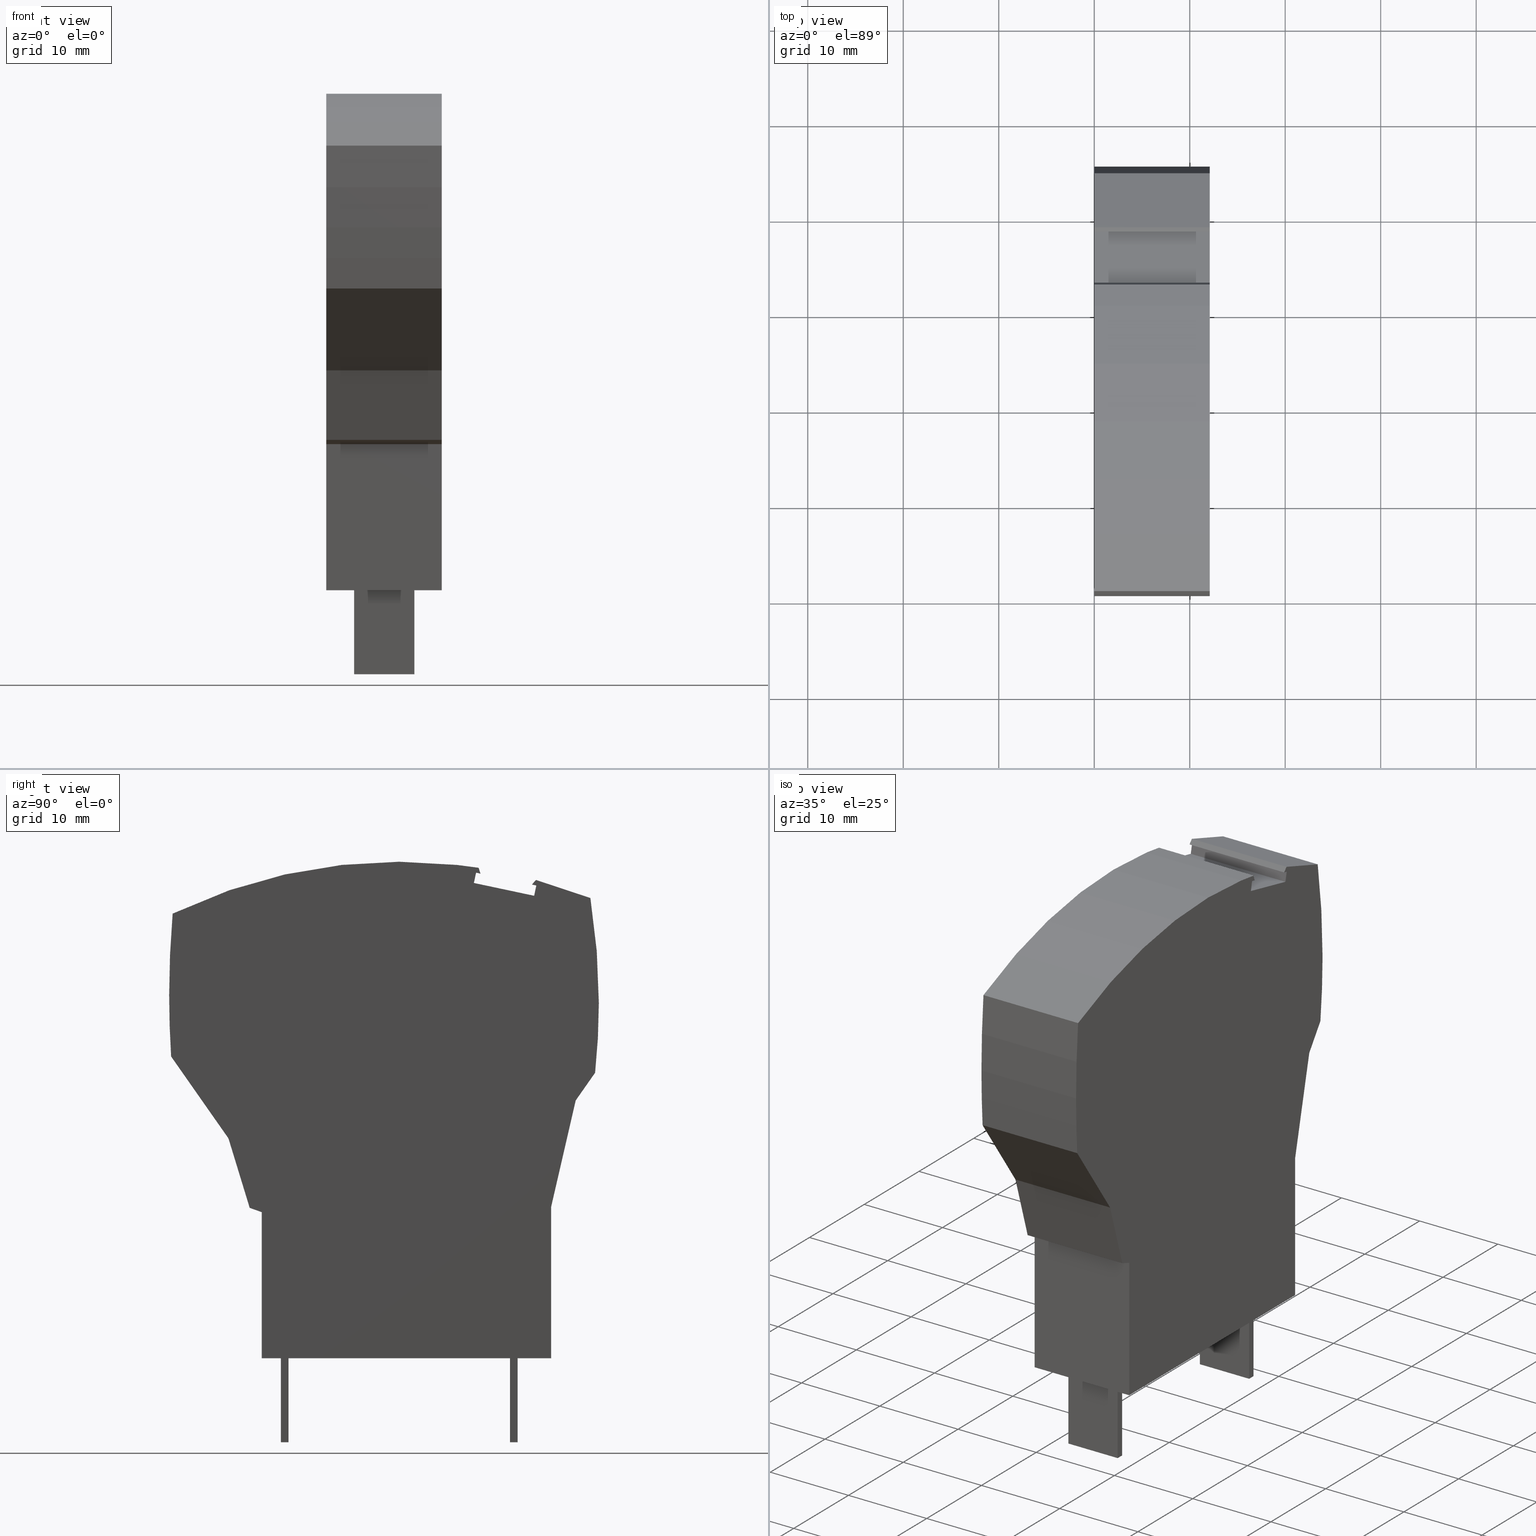
[diagram: canonical four-view strip — front | top / right | iso, engineering-drawing reading convention]
A machine part, canonical four-view strip (front | top / right | iso — engineering-drawing reading convention). The complete STEP part file that produces these views, byte-faithful:
ISO-10303-21;
HEADER;
FILE_DESCRIPTION(('Creo Elements/Direct Modeling STEP Export'),'2;1');
FILE_NAME(
'D:/temp/JobSpoolerServerData/JobServer Files/905f7214-697b-4cc7-9f74-3f
03e1c14817/work/output/model.stp','2018-02-08T20:59:28',(''),(''),
'Creo Elements/Direct Modeling STEP processor for AP214 (Solid Model)',
'Creo Elements/Direct Modeling 18.1I  14-Aug-2016 (C) Parametric Technol
ogy GmbH','');
FILE_SCHEMA(('AUTOMOTIVE_DESIGN { 1 0 10303 214 1 1 1 1 }'));
ENDSEC;
DATA;
#10=CARTESIAN_POINT('',(-14.1362190122504,39.688519976563,
53.6700000001206));
#20=DIRECTION('',(-0.314002501785972,0.949422155246101,0.));
#30=DIRECTION('',(0.949422155246101,0.314002501785972,0.));
#40=AXIS2_PLACEMENT_3D('',#10,#20,#30);
#50=PLANE('',#40);
#60=CARTESIAN_POINT('',(-19.8336208526797,37.8042175914864,
41.4450000001206));
#70=DIRECTION('',(0.,0.,1.));
#80=VECTOR('',#70,1.);
#90=LINE('',#60,#80);
#100=CARTESIAN_POINT('',(-19.8336208526797,37.8042175914864,
41.4700000001206));
#110=VERTEX_POINT('',#100);
#120=CARTESIAN_POINT('',(-19.8336208526797,37.8042175914864,
53.5700000001206));
#130=VERTEX_POINT('',#120);
#140=EDGE_CURVE('',#110,#130,#90,.T.);
#150=ORIENTED_EDGE('',*,*,#140,.T.);
#160=CARTESIAN_POINT('',(0.,44.363793363764,41.4700000001206));
#170=DIRECTION('',(0.949422155246101,0.314002501785972,0.));
#180=VECTOR('',#170,1.);
#190=LINE('',#160,#180);
#200=CARTESIAN_POINT('',(-14.1362190122504,39.688519976563,
41.4700000001206));
#210=VERTEX_POINT('',#200);
#220=EDGE_CURVE('',#110,#210,#190,.T.);
#230=ORIENTED_EDGE('',*,*,#220,.F.);
#240=CARTESIAN_POINT('',(-14.1362190122504,39.688519976563,0.));
#250=DIRECTION('',(0.,0.,-1.));
#260=VECTOR('',#250,1.);
#270=LINE('',#240,#260);
#280=CARTESIAN_POINT('',(-14.1362190122504,39.688519976563,
53.5700000001206));
#290=VERTEX_POINT('',#280);
#300=EDGE_CURVE('',#290,#210,#270,.T.);
#310=ORIENTED_EDGE('',*,*,#300,.T.);
#320=CARTESIAN_POINT('',(-19.8336208526797,37.8042175914864,
53.5700000001206));
#330=DIRECTION('',(0.949422155246101,0.314002501785972,0.));
#340=VECTOR('',#330,1.);
#350=LINE('',#320,#340);
#360=EDGE_CURVE('',#130,#290,#350,.T.);
#370=ORIENTED_EDGE('',*,*,#360,.T.);
#380=EDGE_LOOP('',(#370,#310,#230,#150));
#390=FACE_OUTER_BOUND('',#380,.T.);
#400=ADVANCED_FACE('',(#390),#50,.T.);
#410=CARTESIAN_POINT('',(0.182167226154589,21.7394412001866,
53.5700000001206));
#420=DIRECTION('',(0.,0.,-1.));
#430=DIRECTION('',(-1.,1.11123366772477E-12,0.));
#440=AXIS2_PLACEMENT_3D('',#410,#420,#430);
#450=PLANE('',#440);
#460=CARTESIAN_POINT('',(0.182167226176034,41.037532050174,
53.5700000001206));
#470=DIRECTION('',(0.978147600733797,0.207911690817799,0.));
#480=VECTOR('',#470,1.);
#490=LINE('',#460,#480);
#500=CARTESIAN_POINT('',(-13.9414428391099,38.0354660563281,
53.5700000001206));
#510=VERTEX_POINT('',#500);
#520=CARTESIAN_POINT('',(-7.63239081437997,39.3764964621022,
53.5700000001206));
#530=VERTEX_POINT('',#520);
#540=EDGE_CURVE('',#510,#530,#490,.T.);
#550=ORIENTED_EDGE('',*,*,#540,.F.);
#560=CARTESIAN_POINT('',(-3.88351898992322,21.7394412001911,
53.5700000001206));
#570=DIRECTION('',(-0.207911690817799,0.978147600733797,0.));
#580=VECTOR('',#570,1.);
#590=LINE('',#560,#580);
#600=CARTESIAN_POINT('',(-7.86109367427783,40.4524588229013,
53.5700000001206));
#610=VERTEX_POINT('',#600);
#620=EDGE_CURVE('',#530,#610,#590,.T.);
#630=ORIENTED_EDGE('',*,*,#620,.F.);
#640=CARTESIAN_POINT('',(0.182167226177283,42.1621067045173,
53.5700000001206));
#650=DIRECTION('',(-0.978147600733797,-0.2079116908178,0.));
#660=VECTOR('',#650,1.);
#670=LINE('',#640,#660);
#680=CARTESIAN_POINT('',(-8.32571378462792,40.3537007697626,
53.5700000001206));
#690=VERTEX_POINT('',#680);
#700=EDGE_CURVE('',#610,#690,#670,.T.);
#710=ORIENTED_EDGE('',*,*,#700,.F.);
#720=CARTESIAN_POINT('',(-14.3233551554817,21.894858660801,
53.5700000001206));
#730=DIRECTION('',(-0.309016994374891,-0.951056516295172,0.));
#740=VECTOR('',#730,1.);
#750=LINE('',#720,#740);
#760=CARTESIAN_POINT('',(-8.12681152849085,40.9658589689828,
53.5700000001206));
#770=VERTEX_POINT('',#760);
#780=EDGE_CURVE('',#770,#690,#750,.T.);
#790=ORIENTED_EDGE('',*,*,#780,.T.);
#800=CARTESIAN_POINT('',(-8.12681152849085,40.9658589689828,
53.5700000001206));
#810=DIRECTION('',(0.991337247976761,0.131341009490039,0.));
#820=VECTOR('',#810,1.);
#830=LINE('',#800,#820);
#840=CARTESIAN_POINT('',(-5.87324549721038,41.2644310624907,
53.5700000001206));
#850=VERTEX_POINT('',#840);
#860=EDGE_CURVE('',#770,#850,#830,.T.);
#870=ORIENTED_EDGE('',*,*,#860,.F.);
#880=CARTESIAN_POINT('',(-5.87324549721044,41.2644310624907,
53.5700000001206));
#890=DIRECTION('',(0.998468041018534,0.055331465411738,0.));
#900=VECTOR('',#890,1.);
#910=LINE('',#880,#900);
#920=CARTESIAN_POINT('',(0.182167226181893,41.5999999999966,
53.5700000001206));
#930=VERTEX_POINT('',#920);
#940=EDGE_CURVE('',#850,#930,#910,.T.);
#950=ORIENTED_EDGE('',*,*,#940,.F.);
#960=CARTESIAN_POINT('',(0.182167226181884,41.5999999999966,
53.5700000001206));
#970=DIRECTION('',(0.998459954034796,-0.0554772042269052,-0.));
#980=VECTOR('',#970,1.);
#990=LINE('',#960,#980);
#1000=CARTESIAN_POINT('',(6.21214467764376,41.2649577289405,
53.5700000001206));
#1010=VERTEX_POINT('',#1000);
#1020=EDGE_CURVE('',#930,#1010,#990,.T.);
#1030=ORIENTED_EDGE('',*,*,#1020,.F.);
#1040=CARTESIAN_POINT('',(6.21214467764369,41.2649577289405,
53.5700000001206));
#1050=DIRECTION('',(0.986230427358959,-0.165376975880454,-0.));
#1060=VECTOR('',#1050,1.);
#1070=LINE('',#1040,#1060);
#1080=CARTESIAN_POINT('',(12.1685033001367,40.266160136693,
53.5700000001206));
#1090=VERTEX_POINT('',#1080);
#1100=EDGE_CURVE('',#1010,#1090,#1070,.T.);
#1110=ORIENTED_EDGE('',*,*,#1100,.F.);
#1120=CARTESIAN_POINT('',(12.1685033001368,40.266160136693,
53.5700000001206));
#1130=DIRECTION('',(0.961939620185161,-0.273262085035644,-0.));
#1140=VECTOR('',#1130,1.);
#1150=LINE('',#1120,#1140);
#1160=CARTESIAN_POINT('',(17.9787409772999,38.6156223805824,
53.5700000001206));
#1170=VERTEX_POINT('',#1160);
#1180=EDGE_CURVE('',#1090,#1170,#1150,.T.);
#1190=ORIENTED_EDGE('',*,*,#1180,.F.);
#1200=CARTESIAN_POINT('',(17.9787409772999,38.6156223805824,
53.5700000001206));
#1210=DIRECTION('',(0.924547514122095,-0.381066784344497,-0.));
#1220=VECTOR('',#1210,1.);
#1230=LINE('',#1200,#1220);
#1240=CARTESIAN_POINT('',(23.9179771729863,36.1676728658388,
53.5700000001206));
#1250=VERTEX_POINT('',#1240);
#1260=EDGE_CURVE('',#1170,#1250,#1230,.T.);
#1270=ORIENTED_EDGE('',*,*,#1260,.F.);
#1280=CARTESIAN_POINT('',(24.8300921415137,21.7394412001592,
53.5700000001206));
#1290=DIRECTION('',(0.0630914327902522,-0.99800775102625,-0.));
#1300=VECTOR('',#1290,1.);
#1310=LINE('',#1280,#1300);
#1320=CARTESIAN_POINT('',(24.1936064860476,31.8076483953254,
53.5700000001206));
#1330=VERTEX_POINT('',#1320);
#1340=EDGE_CURVE('',#1250,#1330,#1310,.T.);
#1350=ORIENTED_EDGE('',*,*,#1340,.F.);
#1360=CARTESIAN_POINT('',(24.1936064860476,31.8076483953255,
53.5700000001206));
#1370=DIRECTION('',(0.0210429014288442,-0.999778573634911,-0.));
#1380=VECTOR('',#1370,1.);
#1390=LINE('',#1360,#1380);
#1400=CARTESIAN_POINT('',(24.2821672261611,27.5999999999697,
53.5700000001206));
#1410=VERTEX_POINT('',#1400);
#1420=EDGE_CURVE('',#1330,#1410,#1390,.T.);
#1430=ORIENTED_EDGE('',*,*,#1420,.F.);
#1440=CARTESIAN_POINT('',(24.2821672261611,27.5999999999697,
53.5700000001206));
#1450=DIRECTION('',(-0.0160067280420585,-0.999871884121855,0.));
#1460=VECTOR('',#1450,1.);
#1470=LINE('',#1440,#1460);
#1480=CARTESIAN_POINT('',(24.2309241576422,24.3990645349846,
53.5700000001206));
#1490=VERTEX_POINT('',#1480);
#1500=EDGE_CURVE('',#1410,#1490,#1470,.T.);
#1510=ORIENTED_EDGE('',*,*,#1500,.F.);
#1520=CARTESIAN_POINT('',(24.2309241576422,24.3990645349846,
53.5700000001206));
#1530=DIRECTION('',(-0.0480037794467058,-0.998847154052527,0.));
#1540=VECTOR('',#1530,1.);
#1550=LINE('',#1520,#1540);
#1560=CARTESIAN_POINT('',(24.077247469134,21.2014095851065,
53.5700000001206));
#1570=VERTEX_POINT('',#1560);
#1580=EDGE_CURVE('',#1490,#1570,#1550,.T.);
#1590=ORIENTED_EDGE('',*,*,#1580,.F.);
#1600=CARTESIAN_POINT('',(18.4679302965551,13.1904744459233,
53.5700000001206));
#1610=DIRECTION('',(-0.573576436351989,-0.819152044288332,0.));
#1620=VECTOR('',#1610,1.);
#1630=LINE('',#1600,#1620);
#1640=CARTESIAN_POINT('',(18.0708839005865,12.6234334269378,
53.5700000001206));
#1650=VERTEX_POINT('',#1640);
#1660=EDGE_CURVE('',#1570,#1650,#1630,.T.);
#1670=ORIENTED_EDGE('',*,*,#1660,.F.);
#1680=CARTESIAN_POINT('',(17.5006653642924,10.7583326343994,
53.5700000001206));
#1690=DIRECTION('',(0.292371704723776,0.956304755962718,0.));
#1700=VECTOR('',#1690,1.);
#1710=LINE('',#1680,#1700);
#1720=CARTESIAN_POINT('',(15.8466181170123,5.34818786455774,
53.5700000001206));
#1730=VERTEX_POINT('',#1720);
#1740=EDGE_CURVE('',#1730,#1650,#1710,.T.);
#1750=ORIENTED_EDGE('',*,*,#1740,.T.);
#1760=CARTESIAN_POINT('',(0.182167226130205,-0.204116970032334,
53.5700000001206));
#1770=DIRECTION('',(0.942542393209373,0.334086571120643,0.));
#1780=VECTOR('',#1770,1.);
#1790=LINE('',#1760,#1780);
#1800=CARTESIAN_POINT('',(14.5821672261359,4.89999999998335,
53.5700000001206));
#1810=VERTEX_POINT('',#1800);
#1820=EDGE_CURVE('',#1810,#1730,#1790,.T.);
#1830=ORIENTED_EDGE('',*,*,#1820,.T.);
#1840=CARTESIAN_POINT('',(14.5821672261189,-10.4000000000194,
53.5700000001206));
#1850=DIRECTION('',(1.11123366772477E-12,1.,0.));
#1860=VECTOR('',#1850,1.);
#1870=LINE('',#1840,#1860);
#1880=CARTESIAN_POINT('',(14.5821672261189,-10.4000000000194,
53.5700000001206));
#1890=VERTEX_POINT('',#1880);
#1900=EDGE_CURVE('',#1890,#1810,#1870,.T.);
#1910=ORIENTED_EDGE('',*,*,#1900,.T.);
#1920=CARTESIAN_POINT('',(-5.08695122850913,-10.3999999999975,
53.5700000001206));
#1930=DIRECTION('',(-1.,1.11123366772477E-12,0.));
#1940=VECTOR('',#1930,1.);
#1950=LINE('',#1920,#1940);
#1960=CARTESIAN_POINT('',(-15.7178327738811,-10.3999999999857,
53.5700000001206));
#1970=VERTEX_POINT('',#1960);
#1980=EDGE_CURVE('',#1890,#1970,#1950,.T.);
#1990=ORIENTED_EDGE('',*,*,#1980,.F.);
#2000=CARTESIAN_POINT('',(-15.7178327738753,-5.17654999421573,
53.5700000001206));
#2010=DIRECTION('',(1.11123366772477E-12,1.,0.));
#2020=VECTOR('',#2010,1.);
#2030=LINE('',#2000,#2020);
#2040=CARTESIAN_POINT('',(-15.7178327738635,5.43640232414893,
53.5700000001206));
#2050=VERTEX_POINT('',#2040);
#2060=EDGE_CURVE('',#1970,#2050,#2030,.T.);
#2070=ORIENTED_EDGE('',*,*,#2060,.F.);
#2080=CARTESIAN_POINT('',(-18.2951523757511,16.6000000000172,
53.5700000001206));
#2090=DIRECTION('',(0.224951054342823,-0.974370064785476,-0.));
#2100=VECTOR('',#2090,1.);
#2110=LINE('',#2080,#2100);
#2120=CARTESIAN_POINT('',(-18.2951523757229,16.5999999999769,
53.5700000001206));
#2130=VERTEX_POINT('',#2120);
#2140=EDGE_CURVE('',#2130,#2050,#2110,.T.);
#2150=ORIENTED_EDGE('',*,*,#2140,.T.);
#2160=CARTESIAN_POINT('',(-18.3074513060611,16.6175646928221,
53.5700000001206));
#2170=DIRECTION('',(-0.573576436350101,0.819152044289654,0.));
#2180=VECTOR('',#2170,1.);
#2190=LINE('',#2160,#2180);
#2200=CARTESIAN_POINT('',(-20.3274267066365,19.5023885348315,
53.5700000001206));
#2210=VERTEX_POINT('',#2200);
#2220=EDGE_CURVE('',#2130,#2210,#2190,.T.);
#2230=ORIENTED_EDGE('',*,*,#2220,.F.);
#2240=CARTESIAN_POINT('',(-20.6201615225842,23.1459765328589,
53.5700000001206));
#2250=DIRECTION('',(0.0800844049892403,-0.996788085842482,-0.));
#2260=VECTOR('',#2250,1.);
#2270=LINE('',#2240,#2260);
#2280=CARTESIAN_POINT('',(-20.6201615225842,23.1459765328589,
53.5700000001206));
#2290=VERTEX_POINT('',#2280);
#2300=EDGE_CURVE('',#2290,#2210,#2270,.T.);
#2310=ORIENTED_EDGE('',*,*,#2300,.T.);
#2320=CARTESIAN_POINT('',(-20.7178327738363,26.8000000000162,
53.5700000001206));
#2330=DIRECTION('',(0.026720238300827,-0.999642950690469,-0.));
#2340=VECTOR('',#2330,1.);
#2350=LINE('',#2320,#2340);
#2360=CARTESIAN_POINT('',(-20.7178327738363,26.8000000000162,
53.5700000001206));
#2370=VERTEX_POINT('',#2360);
#2380=EDGE_CURVE('',#2370,#2290,#2350,.T.);
#2390=ORIENTED_EDGE('',*,*,#2380,.T.);
#2400=CARTESIAN_POINT('',(-20.5012942807779,32.2383432156127,
53.5700000001206));
#2410=DIRECTION('',(-0.0397854712329645,-0.999208244701159,0.));
#2420=VECTOR('',#2410,1.);
#2430=LINE('',#2400,#2420);
#2440=CARTESIAN_POINT('',(-20.5012942807779,32.2383432156127,
53.5700000001206));
#2450=VERTEX_POINT('',#2440);
#2460=EDGE_CURVE('',#2450,#2370,#2430,.T.);
#2470=ORIENTED_EDGE('',*,*,#2460,.T.);
#2480=CARTESIAN_POINT('',(-21.7607258501062,21.739441200211,
53.5700000001206));
#2490=DIRECTION('',(-0.119104510597663,-0.992881722842802,0.));
#2500=VECTOR('',#2490,1.);
#2510=LINE('',#2480,#2500);
#2520=EDGE_CURVE('',#130,#2450,#2510,.T.);
#2530=ORIENTED_EDGE('',*,*,#2520,.T.);
#2540=ORIENTED_EDGE('',*,*,#360,.F.);
#2550=CARTESIAN_POINT('',(1.88526559939443,21.8948586607829,
53.5700000001206));
#2560=DIRECTION('',(-0.669130606360021,0.743144825476347,0.));
#2570=VECTOR('',#2560,1.);
#2580=LINE('',#2550,#2570);
#2590=CARTESIAN_POINT('',(-13.7055255886619,39.2101864702726,
53.5700000001206));
#2600=VERTEX_POINT('',#2590);
#2610=EDGE_CURVE('',#2600,#290,#2580,.T.);
#2620=ORIENTED_EDGE('',*,*,#2610,.T.);
#2630=CARTESIAN_POINT('',(0.182167226177283,42.1621067047492,
53.5700000001206));
#2640=DIRECTION('',(-0.978147600730583,-0.207911690832918,0.));
#2650=VECTOR('',#2640,1.);
#2660=LINE('',#2630,#2650);
#2670=CARTESIAN_POINT('',(-14.1701456990078,39.1114284171272,
53.5700000001206));
#2680=VERTEX_POINT('',#2670);
#2690=EDGE_CURVE('',#2600,#2680,#2660,.T.);
#2700=ORIENTED_EDGE('',*,*,#2690,.F.);
#2710=CARTESIAN_POINT('',(-10.4776158268011,21.7394412001984,
53.5700000001206));
#2720=DIRECTION('',(0.2079116908178,-0.978147600733797,-0.));
#2730=VECTOR('',#2720,1.);
#2740=LINE('',#2710,#2730);
#2750=EDGE_CURVE('',#2680,#510,#2740,.T.);
#2760=ORIENTED_EDGE('',*,*,#2750,.F.);
#2770=EDGE_LOOP('',(#2760,#2700,#2620,#2540,#2530,#2470,#2390,#2310,
#2230,#2150,#2070,#1990,#1910,#1830,#1750,#1670,#1590,#1510,#1430,#1350,
#1270,#1190,#1110,#1030,#950,#870,#790,#710,#630,#550));
#2780=FACE_OUTER_BOUND('',#2770,.T.);
#2790=ADVANCED_FACE('',(#2780),#450,.F.);
#2800=COLOUR_RGB('',0.831372618675232,0.850980460643768,
0.858823597431183);
#2810=FILL_AREA_STYLE_COLOUR('',#2800);
#2820=FILL_AREA_STYLE('',(#2810));
#2830=SURFACE_STYLE_FILL_AREA(#2820);
#2840=SURFACE_SIDE_STYLE('',(#2830));
#2850=SURFACE_STYLE_USAGE(.BOTH.,#2840);
#2860=PRESENTATION_STYLE_ASSIGNMENT((#2850));
#2870=CARTESIAN_POINT('',(-7.63239081437997,39.3764964621023,
53.6700000001206));
#2880=DIRECTION('',(-0.207911690817799,0.978147600733797,0.));
#2890=DIRECTION('',(0.978147600733797,0.207911690817799,0.));
#2900=AXIS2_PLACEMENT_3D('',#2870,#2880,#2890);
#2910=PLANE('',#2900);
#2920=CARTESIAN_POINT('',(-13.9414428391099,38.0354660563281,0.));
#2930=DIRECTION('',(0.,0.,-1.));
#2940=VECTOR('',#2930,1.);
#2950=LINE('',#2920,#2940);
#2960=CARTESIAN_POINT('',(-13.9414428391099,38.0354660563281,
41.4700000001206));
#2970=VERTEX_POINT('',#2960);
#2980=EDGE_CURVE('',#510,#2970,#2950,.T.);
#2990=ORIENTED_EDGE('',*,*,#2980,.F.);
#3000=CARTESIAN_POINT('',(0.,40.998811210929,41.4700000001206));
#3010=DIRECTION('',(0.978147600733797,0.207911690817799,0.));
#3020=VECTOR('',#3010,1.);
#3030=LINE('',#3000,#3020);
#3040=CARTESIAN_POINT('',(-7.63239081437997,39.3764964621022,
41.4700000001206));
#3050=VERTEX_POINT('',#3040);
#3060=EDGE_CURVE('',#2970,#3050,#3030,.T.);
#3070=ORIENTED_EDGE('',*,*,#3060,.F.);
#3080=CARTESIAN_POINT('',(-7.63239081437997,39.3764964621022,
41.4450000001206));
#3090=DIRECTION('',(0.,0.,1.));
#3100=VECTOR('',#3090,1.);
#3110=LINE('',#3080,#3100);
#3120=EDGE_CURVE('',#3050,#530,#3110,.T.);
#3130=ORIENTED_EDGE('',*,*,#3120,.F.);
#3140=ORIENTED_EDGE('',*,*,#540,.T.);
#3150=EDGE_LOOP('',(#3140,#3130,#3070,#2990));
#3160=FACE_OUTER_BOUND('',#3150,.T.);
#3170=ADVANCED_FACE('',(#3160),#2910,.T.);
#3180=CARTESIAN_POINT('',(12.1821672261138,-14.9335786437817,
44.3450000001206));
#3190=DIRECTION('',(0.,0.,-1.));
#3200=DIRECTION('',(-1.,1.11123366772477E-12,0.));
#3210=AXIS2_PLACEMENT_3D('',#3180,#3190,#3200);
#3220=PLANE('',#3210);
#3230=CARTESIAN_POINT('',(11.7821672261194,-9.93357864378129,
44.3450000001206));
#3240=DIRECTION('',(-1.11123366772477E-12,-1.,0.));
#3250=VECTOR('',#3240,1.);
#3260=LINE('',#3230,#3250);
#3270=CARTESIAN_POINT('',(11.7821672261189,-10.4000000000163,
44.3450000001206));
#3280=VERTEX_POINT('',#3270);
#3290=CARTESIAN_POINT('',(11.7821672261091,-19.2000000000163,
44.3450000001206));
#3300=VERTEX_POINT('',#3290);
#3310=EDGE_CURVE('',#3280,#3300,#3260,.T.);
#3320=ORIENTED_EDGE('',*,*,#3310,.F.);
#3330=CARTESIAN_POINT('',(11.7821672261091,-19.2000000000163,
44.3450000001206));
#3340=DIRECTION('',(1.,-1.11123366772477E-12,0.));
#3350=VECTOR('',#3340,1.);
#3360=LINE('',#3330,#3350);
#3370=CARTESIAN_POINT('',(12.5821672261091,-19.2000000000172,
44.3450000001206));
#3380=VERTEX_POINT('',#3370);
#3390=EDGE_CURVE('',#3300,#3380,#3360,.T.);
#3400=ORIENTED_EDGE('',*,*,#3390,.F.);
#3410=CARTESIAN_POINT('',(12.582167226109,-19.2500000000172,
44.3450000001206));
#3420=DIRECTION('',(1.11123366772477E-12,1.,0.));
#3430=VECTOR('',#3420,1.);
#3440=LINE('',#3410,#3430);
#3450=CARTESIAN_POINT('',(12.5821672261189,-10.4000000000172,
44.3450000001206));
#3460=VERTEX_POINT('',#3450);
#3470=EDGE_CURVE('',#3380,#3460,#3440,.T.);
#3480=ORIENTED_EDGE('',*,*,#3470,.F.);
#3490=CARTESIAN_POINT('',(0.182167226118875,-10.4000000000034,
44.3450000001206));
#3500=DIRECTION('',(1.,-1.11123366772477E-12,0.));
#3510=VECTOR('',#3500,1.);
#3520=LINE('',#3490,#3510);
#3530=EDGE_CURVE('',#3280,#3460,#3520,.T.);
#3540=ORIENTED_EDGE('',*,*,#3530,.T.);
#3550=EDGE_LOOP('',(#3540,#3480,#3400,#3320));
#3560=FACE_OUTER_BOUND('',#3550,.T.);
#3570=ADVANCED_FACE('',(#3560),#3220,.T.);
#3580=COLOUR_RGB('',0.501960813999176,0.52549022436142,0.501960813999176
);
#3590=FILL_AREA_STYLE_COLOUR('',#3580);
#3600=FILL_AREA_STYLE('',(#3590));
#3610=SURFACE_STYLE_FILL_AREA(#3600);
#3620=SURFACE_SIDE_STYLE('',(#3610));
#3630=SURFACE_STYLE_USAGE(.BOTH.,#3620);
#3640=PRESENTATION_STYLE_ASSIGNMENT((#3630));
#3650=CARTESIAN_POINT('',(-8.32571378462792,40.3537007697626,
53.6700000001206));
#3660=DIRECTION('',(0.2079116908178,-0.978147600733797,0.));
#3670=DIRECTION('',(-0.978147600733797,-0.2079116908178,0.));
#3680=AXIS2_PLACEMENT_3D('',#3650,#3660,#3670);
#3690=PLANE('',#3680);
#3700=CARTESIAN_POINT('',(-7.86109367427783,40.4524588229013,
41.4450000001206));
#3710=DIRECTION('',(0.,0.,1.));
#3720=VECTOR('',#3710,1.);
#3730=LINE('',#3700,#3720);
#3740=CARTESIAN_POINT('',(-7.86109367427783,40.4524588229013,
41.4700000001206));
#3750=VERTEX_POINT('',#3740);
#3760=EDGE_CURVE('',#3750,#610,#3730,.T.);
#3770=ORIENTED_EDGE('',*,*,#3760,.T.);
#3780=CARTESIAN_POINT('',(0.,42.1233858652721,41.4700000001206));
#3790=DIRECTION('',(-0.978147600733797,-0.2079116908178,0.));
#3800=VECTOR('',#3790,1.);
#3810=LINE('',#3780,#3800);
#3820=CARTESIAN_POINT('',(-8.32571378462792,40.3537007697626,
41.4700000001206));
#3830=VERTEX_POINT('',#3820);
#3840=EDGE_CURVE('',#3750,#3830,#3810,.T.);
#3850=ORIENTED_EDGE('',*,*,#3840,.F.);
#3860=CARTESIAN_POINT('',(-8.32571378462792,40.3537007697626,0.));
#3870=DIRECTION('',(0.,0.,-1.));
#3880=VECTOR('',#3870,1.);
#3890=LINE('',#3860,#3880);
#3900=EDGE_CURVE('',#690,#3830,#3890,.T.);
#3910=ORIENTED_EDGE('',*,*,#3900,.T.);
#3920=ORIENTED_EDGE('',*,*,#700,.T.);
#3930=EDGE_LOOP('',(#3920,#3910,#3850,#3770));
#3940=FACE_OUTER_BOUND('',#3930,.T.);
#3950=ADVANCED_FACE('',(#3940),#3690,.T.);
#3960=CARTESIAN_POINT('',(-15.8705362333059,6.09783367464653,
41.4450000001206));
#3970=DIRECTION('',(-0.974370064785476,-0.224951054342823,0.));
#3980=DIRECTION('',(0.224951054342823,-0.974370064785476,-0.));
#3990=AXIS2_PLACEMENT_3D('',#3960,#3970,#3980);
#4000=PLANE('',#3990);
#4010=CARTESIAN_POINT('',(-18.2951523757511,16.6000000000172,
41.4450000001206));
#4020=DIRECTION('',(0.,0.,1.));
#4030=VECTOR('',#4020,1.);
#4040=LINE('',#4010,#4030);
#4050=CARTESIAN_POINT('',(-18.2951523757229,16.5999999999769,
41.4700000001206));
#4060=VERTEX_POINT('',#4050);
#4070=EDGE_CURVE('',#4060,#2130,#4040,.T.);
#4080=ORIENTED_EDGE('',*,*,#4070,.F.);
#4090=ORIENTED_EDGE('',*,*,#2140,.F.);
#4100=CARTESIAN_POINT('',(-15.7178327738651,5.4364023240739,
41.4450000001206));
#4110=DIRECTION('',(0.,0.,1.));
#4120=VECTOR('',#4110,1.);
#4130=LINE('',#4100,#4120);
#4140=CARTESIAN_POINT('',(-15.7178327738635,5.43640232414893,
41.4700000001206));
#4150=VERTEX_POINT('',#4140);
#4160=EDGE_CURVE('',#4150,#2050,#4130,.T.);
#4170=ORIENTED_EDGE('',*,*,#4160,.T.);
#4180=CARTESIAN_POINT('',(-18.2951523757511,16.6000000000172,
41.4700000001206));
#4190=DIRECTION('',(0.224951054342823,-0.974370064785476,-0.));
#4200=VECTOR('',#4190,1.);
#4210=LINE('',#4180,#4200);
#4220=EDGE_CURVE('',#4060,#4150,#4210,.T.);
#4230=ORIENTED_EDGE('',*,*,#4220,.T.);
#4240=EDGE_LOOP('',(#4230,#4170,#4090,#4080));
#4250=FACE_OUTER_BOUND('',#4240,.T.);
#4260=ADVANCED_FACE('',(#4250),#4000,.T.);
#4270=COLOUR_RGB('',0.831372618675232,0.850980460643768,
0.858823597431183);
#4280=FILL_AREA_STYLE_COLOUR('',#4270);
#4290=FILL_AREA_STYLE('',(#4280));
#4300=SURFACE_STYLE_FILL_AREA(#4290);
#4310=SURFACE_SIDE_STYLE('',(#4300));
#4320=SURFACE_STYLE_USAGE(.BOTH.,#4310);
#4330=PRESENTATION_STYLE_ASSIGNMENT((#4320));
#4340=CARTESIAN_POINT('',(15.8466181170164,5.34818786455919,
54.8100024001206));
#4350=DIRECTION('',(-0.334086571120643,0.942542393209373,0.));
#4360=DIRECTION('',(-0.942542393209373,-0.334086571120643,0.));
#4370=AXIS2_PLACEMENT_3D('',#4340,#4350,#4360);
#4380=PLANE('',#4370);
#4390=CARTESIAN_POINT('',(15.8466181170014,5.34818786455388,
41.4450000001206));
#4400=DIRECTION('',(0.,0.,1.));
#4410=VECTOR('',#4400,1.);
#4420=LINE('',#4390,#4410);
#4430=CARTESIAN_POINT('',(15.8466181170123,5.34818786455774,
41.4700000001206));
#4440=VERTEX_POINT('',#4430);
#4450=EDGE_CURVE('',#4440,#1730,#4420,.T.);
#4460=ORIENTED_EDGE('',*,*,#4450,.T.);
#4470=CARTESIAN_POINT('',(0.182167226130205,-0.204116970032334,
41.4700000001206));
#4480=DIRECTION('',(0.942542393209373,0.334086571120643,0.));
#4490=VECTOR('',#4480,1.);
#4500=LINE('',#4470,#4490);
#4510=CARTESIAN_POINT('',(14.5821672261359,4.89999999998335,
41.4700000001206));
#4520=VERTEX_POINT('',#4510);
#4530=EDGE_CURVE('',#4520,#4440,#4500,.T.);
#4540=ORIENTED_EDGE('',*,*,#4530,.T.);
#4550=CARTESIAN_POINT('',(14.5821672261359,4.89999999998335,
41.4450000001206));
#4560=DIRECTION('',(0.,0.,-1.));
#4570=VECTOR('',#4560,1.);
#4580=LINE('',#4550,#4570);
#4590=EDGE_CURVE('',#1810,#4520,#4580,.T.);
#4600=ORIENTED_EDGE('',*,*,#4590,.T.);
#4610=ORIENTED_EDGE('',*,*,#1820,.F.);
#4620=EDGE_LOOP('',(#4610,#4600,#4540,#4460));
#4630=FACE_OUTER_BOUND('',#4620,.T.);
#4640=ADVANCED_FACE('',(#4630),#4380,.F.);
#4650=COLOUR_RGB('',0.831372618675232,0.850980460643768,
0.858823597431183);
#4660=FILL_AREA_STYLE_COLOUR('',#4650);
#4670=FILL_AREA_STYLE('',(#4660));
#4680=SURFACE_STYLE_FILL_AREA(#4670);
#4690=SURFACE_SIDE_STYLE('',(#4680));
#4700=SURFACE_STYLE_USAGE(.BOTH.,#4690);
#4710=PRESENTATION_STYLE_ASSIGNMENT((#4700));
#4720=CARTESIAN_POINT('',(-15.7178327738779,-7.52345000575573,
41.4450000001206));
#4730=DIRECTION('',(-1.,1.11123366772477E-12,0.));
#4740=DIRECTION('',(-1.11123366772477E-12,-1.,0.));
#4750=AXIS2_PLACEMENT_3D('',#4720,#4730,#4740);
#4760=PLANE('',#4750);
#4770=ORIENTED_EDGE('',*,*,#4160,.F.);
#4780=ORIENTED_EDGE('',*,*,#2060,.T.);
#4790=CARTESIAN_POINT('',(-15.7178327738811,-10.3999999999857,
41.4450000001206));
#4800=DIRECTION('',(0.,0.,1.));
#4810=VECTOR('',#4800,1.);
#4820=LINE('',#4790,#4810);
#4830=CARTESIAN_POINT('',(-15.7178327738811,-10.3999999999857,
41.4700000001206));
#4840=VERTEX_POINT('',#4830);
#4850=EDGE_CURVE('',#4840,#1970,#4820,.T.);
#4860=ORIENTED_EDGE('',*,*,#4850,.T.);
#4870=CARTESIAN_POINT('',(-15.7178327738753,-5.17654999421573,
41.4700000001206));
#4880=DIRECTION('',(1.11123366772477E-12,1.,0.));
#4890=VECTOR('',#4880,1.);
#4900=LINE('',#4870,#4890);
#4910=EDGE_CURVE('',#4840,#4150,#4900,.T.);
#4920=ORIENTED_EDGE('',*,*,#4910,.F.);
#4930=EDGE_LOOP('',(#4920,#4860,#4780,#4770));
#4940=FACE_OUTER_BOUND('',#4930,.T.);
#4950=ADVANCED_FACE('',(#4940),#4760,.T.);
#4960=COLOUR_RGB('',0.831372618675232,0.850980460643768,
0.858823597431183);
#4970=FILL_AREA_STYLE_COLOUR('',#4960);
#4980=FILL_AREA_STYLE('',(#4970));
#4990=SURFACE_STYLE_FILL_AREA(#4980);
#5000=SURFACE_SIDE_STYLE('',(#4990));
#5010=SURFACE_STYLE_USAGE(.BOTH.,#5000);
#5020=PRESENTATION_STYLE_ASSIGNMENT((#5010));
#5030=CARTESIAN_POINT('',(24.1936064860476,31.8076483953255,
53.5950000001206));
#5040=DIRECTION('',(0.99800775102625,0.0630914327902522,0.));
#5050=DIRECTION('',(0.0630914327902522,-0.99800775102625,-0.));
#5060=AXIS2_PLACEMENT_3D('',#5030,#5040,#5050);
#5070=PLANE('',#5060);
#5080=CARTESIAN_POINT('',(23.9179771729863,36.1676728658388,
41.4450000001206));
#5090=DIRECTION('',(0.,0.,1.));
#5100=VECTOR('',#5090,1.);
#5110=LINE('',#5080,#5100);
#5120=CARTESIAN_POINT('',(23.9179771729863,36.1676728658388,
41.4700000001206));
#5130=VERTEX_POINT('',#5120);
#5140=EDGE_CURVE('',#5130,#1250,#5110,.T.);
#5150=ORIENTED_EDGE('',*,*,#5140,.T.);
#5160=CARTESIAN_POINT('',(24.8300921415137,21.7394412001592,
41.4700000001206));
#5170=DIRECTION('',(0.0630914327902522,-0.99800775102625,-0.));
#5180=VECTOR('',#5170,1.);
#5190=LINE('',#5160,#5180);
#5200=CARTESIAN_POINT('',(24.1936064860476,31.8076483953254,
41.4700000001206));
#5210=VERTEX_POINT('',#5200);
#5220=EDGE_CURVE('',#5130,#5210,#5190,.T.);
#5230=ORIENTED_EDGE('',*,*,#5220,.F.);
#5240=CARTESIAN_POINT('',(24.1936064860476,31.8076483953255,
53.5950000001206));
#5250=DIRECTION('',(0.,0.,-1.));
#5260=VECTOR('',#5250,1.);
#5270=LINE('',#5240,#5260);
#5280=EDGE_CURVE('',#1330,#5210,#5270,.T.);
#5290=ORIENTED_EDGE('',*,*,#5280,.T.);
#5300=ORIENTED_EDGE('',*,*,#1340,.T.);
#5310=EDGE_LOOP('',(#5300,#5290,#5230,#5150));
#5320=FACE_OUTER_BOUND('',#5310,.T.);
#5330=ADVANCED_FACE('',(#5320),#5070,.T.);
#5340=COLOUR_RGB('',0.831372618675232,0.850980460643768,
0.858823597431183);
#5350=FILL_AREA_STYLE_COLOUR('',#5340);
#5360=FILL_AREA_STYLE('',(#5350));
#5370=SURFACE_STYLE_FILL_AREA(#5360);
#5380=SURFACE_SIDE_STYLE('',(#5370));
#5390=SURFACE_STYLE_USAGE(.BOTH.,#5380);
#5400=PRESENTATION_STYLE_ASSIGNMENT((#5390));
#5410=CARTESIAN_POINT('',(24.2821672261611,27.5999999999697,
53.5950000001206));
#5420=DIRECTION('',(0.999778573634911,0.0210429014288442,0.));
#5430=DIRECTION('',(0.0210429014288442,-0.999778573634911,-0.));
#5440=AXIS2_PLACEMENT_3D('',#5410,#5420,#5430);
#5450=PLANE('',#5440);
#5460=ORIENTED_EDGE('',*,*,#5280,.F.);
#5470=CARTESIAN_POINT('',(24.1936064860476,31.8076483953255,
41.4700000001206));
#5480=DIRECTION('',(0.0210429014288442,-0.999778573634911,-0.));
#5490=VECTOR('',#5480,1.);
#5500=LINE('',#5470,#5490);
#5510=CARTESIAN_POINT('',(24.2821672261611,27.5999999999697,
41.4700000001206));
#5520=VERTEX_POINT('',#5510);
#5530=EDGE_CURVE('',#5210,#5520,#5500,.T.);
#5540=ORIENTED_EDGE('',*,*,#5530,.F.);
#5550=CARTESIAN_POINT('',(24.2821672261611,27.5999999999697,
53.5950000001206));
#5560=DIRECTION('',(0.,0.,-1.));
#5570=VECTOR('',#5560,1.);
#5580=LINE('',#5550,#5570);
#5590=EDGE_CURVE('',#1410,#5520,#5580,.T.);
#5600=ORIENTED_EDGE('',*,*,#5590,.T.);
#5610=ORIENTED_EDGE('',*,*,#1420,.T.);
#5620=EDGE_LOOP('',(#5610,#5600,#5540,#5460));
#5630=FACE_OUTER_BOUND('',#5620,.T.);
#5640=ADVANCED_FACE('',(#5630),#5450,.T.);
#5650=COLOUR_RGB('',0.831372618675232,0.850980460643768,
0.858823597431183);
#5660=FILL_AREA_STYLE_COLOUR('',#5650);
#5670=FILL_AREA_STYLE('',(#5660));
#5680=SURFACE_STYLE_FILL_AREA(#5670);
#5690=SURFACE_SIDE_STYLE('',(#5680));
#5700=SURFACE_STYLE_USAGE(.BOTH.,#5690);
#5710=PRESENTATION_STYLE_ASSIGNMENT((#5700));
#5720=CARTESIAN_POINT('',(14.5821672261359,4.89999999998335,
41.4450000001206));
#5730=DIRECTION('',(1.,-1.11123366772477E-12,0.));
#5740=DIRECTION('',(1.11123366772477E-12,1.,0.));
#5750=AXIS2_PLACEMENT_3D('',#5720,#5730,#5740);
#5760=PLANE('',#5750);
#5770=CARTESIAN_POINT('',(14.5821672261189,-10.4000000000194,
41.4450000001206));
#5780=DIRECTION('',(0.,0.,1.));
#5790=VECTOR('',#5780,1.);
#5800=LINE('',#5770,#5790);
#5810=CARTESIAN_POINT('',(14.5821672261189,-10.4000000000194,
41.4700000001206));
#5820=VERTEX_POINT('',#5810);
#5830=EDGE_CURVE('',#5820,#1890,#5800,.T.);
#5840=ORIENTED_EDGE('',*,*,#5830,.F.);
#5850=ORIENTED_EDGE('',*,*,#1900,.F.);
#5860=ORIENTED_EDGE('',*,*,#4590,.F.);
#5870=CARTESIAN_POINT('',(14.5821672261189,-10.4000000000194,
41.4700000001206));
#5880=DIRECTION('',(1.11123366772477E-12,1.,0.));
#5890=VECTOR('',#5880,1.);
#5900=LINE('',#5870,#5890);
#5910=EDGE_CURVE('',#5820,#4520,#5900,.T.);
#5920=ORIENTED_EDGE('',*,*,#5910,.T.);
#5930=EDGE_LOOP('',(#5920,#5860,#5850,#5840));
#5940=FACE_OUTER_BOUND('',#5930,.T.);
#5950=ADVANCED_FACE('',(#5940),#5760,.T.);
#5960=COLOUR_RGB('',0.831372618675232,0.850980460643768,
0.858823597431183);
#5970=FILL_AREA_STYLE_COLOUR('',#5960);
#5980=FILL_AREA_STYLE('',(#5970));
#5990=SURFACE_STYLE_FILL_AREA(#5980);
#6000=SURFACE_SIDE_STYLE('',(#5990));
#6010=SURFACE_STYLE_USAGE(.BOTH.,#6000);
#6020=PRESENTATION_STYLE_ASSIGNMENT((#6010));
#6030=CARTESIAN_POINT('',(18.0708839005865,12.6234334269381,
41.4450000001206));
#6040=DIRECTION('',(0.956304755962718,-0.292371704723776,0.));
#6050=DIRECTION('',(0.292371704723776,0.956304755962718,0.));
#6060=AXIS2_PLACEMENT_3D('',#6030,#6040,#6050);
#6070=PLANE('',#6060);
#6080=ORIENTED_EDGE('',*,*,#4450,.F.);
#6090=ORIENTED_EDGE('',*,*,#1740,.F.);
#6100=CARTESIAN_POINT('',(18.0708839005865,12.6234334269381,
41.4450000001206));
#6110=DIRECTION('',(0.,0.,1.));
#6120=VECTOR('',#6110,1.);
#6130=LINE('',#6100,#6120);
#6140=CARTESIAN_POINT('',(18.0708839005865,12.6234334269378,
41.4700000001206));
#6150=VERTEX_POINT('',#6140);
#6160=EDGE_CURVE('',#6150,#1650,#6130,.T.);
#6170=ORIENTED_EDGE('',*,*,#6160,.T.);
#6180=CARTESIAN_POINT('',(17.5006653642924,10.7583326343994,
41.4700000001206));
#6190=DIRECTION('',(0.292371704723776,0.956304755962718,0.));
#6200=VECTOR('',#6190,1.);
#6210=LINE('',#6180,#6200);
#6220=EDGE_CURVE('',#4440,#6150,#6210,.T.);
#6230=ORIENTED_EDGE('',*,*,#6220,.T.);
#6240=EDGE_LOOP('',(#6230,#6170,#6090,#6080));
#6250=FACE_OUTER_BOUND('',#6240,.T.);
#6260=ADVANCED_FACE('',(#6250),#6070,.T.);
#6270=COLOUR_RGB('',0.831372618675232,0.850980460643768,
0.858823597431183);
#6280=FILL_AREA_STYLE_COLOUR('',#6270);
#6290=FILL_AREA_STYLE('',(#6280));
#6300=SURFACE_STYLE_FILL_AREA(#6290);
#6310=SURFACE_SIDE_STYLE('',(#6300));
#6320=SURFACE_STYLE_USAGE(.BOTH.,#6310);
#6330=PRESENTATION_STYLE_ASSIGNMENT((#6320));
#6340=CARTESIAN_POINT('',(24.077247469134,21.2014095851065,
53.5950000001206));
#6350=DIRECTION('',(0.998847154052527,-0.0480037794467058,0.));
#6360=DIRECTION('',(-0.0480037794467058,-0.998847154052527,0.));
#6370=AXIS2_PLACEMENT_3D('',#6340,#6350,#6360);
#6380=PLANE('',#6370);
#6390=CARTESIAN_POINT('',(24.2309241576422,24.3990645349846,
53.5950000001206));
#6400=DIRECTION('',(0.,0.,-1.));
#6410=VECTOR('',#6400,1.);
#6420=LINE('',#6390,#6410);
#6430=CARTESIAN_POINT('',(24.2309241576422,24.3990645349846,
41.4700000001206));
#6440=VERTEX_POINT('',#6430);
#6450=EDGE_CURVE('',#1490,#6440,#6420,.T.);
#6460=ORIENTED_EDGE('',*,*,#6450,.F.);
#6470=CARTESIAN_POINT('',(24.2309241576422,24.3990645349846,
41.4700000001206));
#6480=DIRECTION('',(-0.0480037794467058,-0.998847154052527,0.));
#6490=VECTOR('',#6480,1.);
#6500=LINE('',#6470,#6490);
#6510=CARTESIAN_POINT('',(24.077247469134,21.2014095851065,
41.4700000001206));
#6520=VERTEX_POINT('',#6510);
#6530=EDGE_CURVE('',#6440,#6520,#6500,.T.);
#6540=ORIENTED_EDGE('',*,*,#6530,.F.);
#6550=CARTESIAN_POINT('',(24.077247469134,21.2014095851065,
53.5950000001206));
#6560=DIRECTION('',(0.,0.,-1.));
#6570=VECTOR('',#6560,1.);
#6580=LINE('',#6550,#6570);
#6590=EDGE_CURVE('',#1570,#6520,#6580,.T.);
#6600=ORIENTED_EDGE('',*,*,#6590,.T.);
#6610=ORIENTED_EDGE('',*,*,#1580,.T.);
#6620=EDGE_LOOP('',(#6610,#6600,#6540,#6460));
#6630=FACE_OUTER_BOUND('',#6620,.T.);
#6640=ADVANCED_FACE('',(#6630),#6380,.T.);
#6650=COLOUR_RGB('',0.831372618675232,0.850980460643768,
0.858823597431183);
#6660=FILL_AREA_STYLE_COLOUR('',#6650);
#6670=FILL_AREA_STYLE('',(#6660));
#6680=SURFACE_STYLE_FILL_AREA(#6670);
#6690=SURFACE_SIDE_STYLE('',(#6680));
#6700=SURFACE_STYLE_USAGE(.BOTH.,#6690);
#6710=PRESENTATION_STYLE_ASSIGNMENT((#6700));
#6720=CARTESIAN_POINT('',(-20.5012942807779,32.2383432156127,
53.5950000001206));
#6730=DIRECTION('',(-0.999208244701159,0.0397854712329645,0.));
#6740=DIRECTION('',(0.0397854712329645,0.999208244701159,0.));
#6750=AXIS2_PLACEMENT_3D('',#6720,#6730,#6740);
#6760=PLANE('',#6750);
#6770=CARTESIAN_POINT('',(-20.7178327738363,26.8000000000162,
53.5950000001206));
#6780=DIRECTION('',(0.,0.,-1.));
#6790=VECTOR('',#6780,1.);
#6800=LINE('',#6770,#6790);
#6810=CARTESIAN_POINT('',(-20.7178327738363,26.8000000000162,
41.4700000001206));
#6820=VERTEX_POINT('',#6810);
#6830=EDGE_CURVE('',#2370,#6820,#6800,.T.);
#6840=ORIENTED_EDGE('',*,*,#6830,.F.);
#6850=CARTESIAN_POINT('',(-20.5012942807779,32.2383432156127,
41.4700000001206));
#6860=DIRECTION('',(-0.0397854712329645,-0.999208244701159,0.));
#6870=VECTOR('',#6860,1.);
#6880=LINE('',#6850,#6870);
#6890=CARTESIAN_POINT('',(-20.5012942807779,32.2383432156127,
41.4700000001206));
#6900=VERTEX_POINT('',#6890);
#6910=EDGE_CURVE('',#6900,#6820,#6880,.T.);
#6920=ORIENTED_EDGE('',*,*,#6910,.T.);
#6930=CARTESIAN_POINT('',(-20.5012942807779,32.2383432156127,
53.5950000001206));
#6940=DIRECTION('',(0.,0.,-1.));
#6950=VECTOR('',#6940,1.);
#6960=LINE('',#6930,#6950);
#6970=EDGE_CURVE('',#2450,#6900,#6960,.T.);
#6980=ORIENTED_EDGE('',*,*,#6970,.T.);
#6990=ORIENTED_EDGE('',*,*,#2460,.F.);
#7000=EDGE_LOOP('',(#6990,#6980,#6920,#6840));
#7010=FACE_OUTER_BOUND('',#7000,.T.);
#7020=ADVANCED_FACE('',(#7010),#6760,.T.);
#7030=COLOUR_RGB('',0.831372618675232,0.850980460643768,
0.858823597431183);
#7040=FILL_AREA_STYLE_COLOUR('',#7030);
#7050=FILL_AREA_STYLE('',(#7040));
#7060=SURFACE_STYLE_FILL_AREA(#7050);
#7070=SURFACE_SIDE_STYLE('',(#7060));
#7080=SURFACE_STYLE_USAGE(.BOTH.,#7070);
#7090=PRESENTATION_STYLE_ASSIGNMENT((#7080));
#7100=CARTESIAN_POINT('',(12.5821672261194,-9.93357864378218,
44.3450000001206));
#7110=DIRECTION('',(1.,-1.11123366772477E-12,0.));
#7120=DIRECTION('',(1.11123366772477E-12,1.,0.));
#7130=AXIS2_PLACEMENT_3D('',#7100,#7110,#7120);
#7140=PLANE('',#7130);
#7150=ORIENTED_EDGE('',*,*,#3470,.T.);
#7160=CARTESIAN_POINT('',(12.5821672261091,-19.2000000000172,
44.3450000001206));
#7170=DIRECTION('',(0.,0.,1.));
#7180=VECTOR('',#7170,1.);
#7190=LINE('',#7160,#7180);
#7200=CARTESIAN_POINT('',(12.5821672261091,-19.2000000000172,
50.6450000001206));
#7210=VERTEX_POINT('',#7200);
#7220=EDGE_CURVE('',#3380,#7210,#7190,.T.);
#7230=ORIENTED_EDGE('',*,*,#7220,.F.);
#7240=CARTESIAN_POINT('',(12.582167226109,-19.2500000000172,
50.6450000001206));
#7250=DIRECTION('',(1.11123366772477E-12,1.,0.));
#7260=VECTOR('',#7250,1.);
#7270=LINE('',#7240,#7260);
#7280=CARTESIAN_POINT('',(12.5821672261189,-10.4000000000172,
50.6450000001206));
#7290=VERTEX_POINT('',#7280);
#7300=EDGE_CURVE('',#7210,#7290,#7270,.T.);
#7310=ORIENTED_EDGE('',*,*,#7300,.F.);
#7320=CARTESIAN_POINT('',(12.5821672261189,-10.4000000000172,
41.4450000001206));
#7330=DIRECTION('',(0.,0.,1.));
#7340=VECTOR('',#7330,1.);
#7350=LINE('',#7320,#7340);
#7360=EDGE_CURVE('',#3460,#7290,#7350,.T.);
#7370=ORIENTED_EDGE('',*,*,#7360,.T.);
#7380=EDGE_LOOP('',(#7370,#7310,#7230,#7150));
#7390=FACE_OUTER_BOUND('',#7380,.T.);
#7400=ADVANCED_FACE('',(#7390),#7140,.T.);
#7410=COLOUR_RGB('',0.501960813999176,0.52549022436142,0.501960813999176
);
#7420=FILL_AREA_STYLE_COLOUR('',#7410);
#7430=FILL_AREA_STYLE('',(#7420));
#7440=SURFACE_STYLE_FILL_AREA(#7430);
#7450=SURFACE_SIDE_STYLE('',(#7440));
#7460=SURFACE_STYLE_USAGE(.BOTH.,#7450);
#7470=PRESENTATION_STYLE_ASSIGNMENT((#7460));
#7480=CARTESIAN_POINT('',(-20.7178327738363,26.8000000000162,
53.5950000001206));
#7490=DIRECTION('',(-0.999642950690469,-0.026720238300827,-0.));
#7500=DIRECTION('',(-0.026720238300827,0.999642950690469,0.));
#7510=AXIS2_PLACEMENT_3D('',#7480,#7490,#7500);
#7520=PLANE('',#7510);
#7530=CARTESIAN_POINT('',(-20.6201615225842,23.1459765328589,
53.5950000001206));
#7540=DIRECTION('',(0.,0.,-1.));
#7550=VECTOR('',#7540,1.);
#7560=LINE('',#7530,#7550);
#7570=CARTESIAN_POINT('',(-20.6201615225842,23.1459765328589,
41.4700000001206));
#7580=VERTEX_POINT('',#7570);
#7590=EDGE_CURVE('',#2290,#7580,#7560,.T.);
#7600=ORIENTED_EDGE('',*,*,#7590,.F.);
#7610=CARTESIAN_POINT('',(-20.7178327738363,26.8000000000162,
41.4700000001206));
#7620=DIRECTION('',(0.026720238300827,-0.999642950690469,-0.));
#7630=VECTOR('',#7620,1.);
#7640=LINE('',#7610,#7630);
#7650=EDGE_CURVE('',#6820,#7580,#7640,.T.);
#7660=ORIENTED_EDGE('',*,*,#7650,.T.);
#7670=ORIENTED_EDGE('',*,*,#6830,.T.);
#7680=ORIENTED_EDGE('',*,*,#2380,.F.);
#7690=EDGE_LOOP('',(#7680,#7670,#7660,#7600));
#7700=FACE_OUTER_BOUND('',#7690,.T.);
#7710=ADVANCED_FACE('',(#7700),#7520,.T.);
#7720=COLOUR_RGB('',0.831372618675232,0.850980460643768,
0.858823597431183);
#7730=FILL_AREA_STYLE_COLOUR('',#7720);
#7740=FILL_AREA_STYLE('',(#7730));
#7750=SURFACE_STYLE_FILL_AREA(#7740);
#7760=SURFACE_SIDE_STYLE('',(#7750));
#7770=SURFACE_STYLE_USAGE(.BOTH.,#7760);
#7780=PRESENTATION_STYLE_ASSIGNMENT((#7770));
#7790=CARTESIAN_POINT('',(-18.2951523757511,16.6000000000172,
41.4450000001206));
#7800=DIRECTION('',(-0.819152044289654,-0.573576436350101,0.));
#7810=DIRECTION('',(0.573576436350101,-0.819152044289654,-0.));
#7820=AXIS2_PLACEMENT_3D('',#7790,#7800,#7810);
#7830=PLANE('',#7820);
#7840=CARTESIAN_POINT('',(-20.3274267066363,19.5023885348288,
53.5950000001206));
#7850=DIRECTION('',(0.,0.,-1.));
#7860=VECTOR('',#7850,1.);
#7870=LINE('',#7840,#7860);
#7880=CARTESIAN_POINT('',(-20.3274267066365,19.5023885348315,
41.4700000001206));
#7890=VERTEX_POINT('',#7880);
#7900=EDGE_CURVE('',#2210,#7890,#7870,.T.);
#7910=ORIENTED_EDGE('',*,*,#7900,.T.);
#7920=ORIENTED_EDGE('',*,*,#2220,.T.);
#7930=ORIENTED_EDGE('',*,*,#4070,.T.);
#7940=CARTESIAN_POINT('',(-20.3274267066363,19.5023885348288,
41.4700000001206));
#7950=DIRECTION('',(0.573576436350101,-0.819152044289653,-0.));
#7960=VECTOR('',#7950,1.);
#7970=LINE('',#7940,#7960);
#7980=EDGE_CURVE('',#7890,#4060,#7970,.T.);
#7990=ORIENTED_EDGE('',*,*,#7980,.T.);
#8000=EDGE_LOOP('',(#7990,#7930,#7920,#7910));
#8010=FACE_OUTER_BOUND('',#8000,.T.);
#8020=ADVANCED_FACE('',(#8010),#7830,.T.);
#8030=COLOUR_RGB('',0.831372618675232,0.850980460643768,
0.858823597431183);
#8040=FILL_AREA_STYLE_COLOUR('',#8030);
#8050=FILL_AREA_STYLE('',(#8040));
#8060=SURFACE_STYLE_FILL_AREA(#8050);
#8070=SURFACE_SIDE_STYLE('',(#8060));
#8080=SURFACE_STYLE_USAGE(.BOTH.,#8070);
#8090=PRESENTATION_STYLE_ASSIGNMENT((#8080));
#8100=CARTESIAN_POINT('',(6.21214467764369,41.2649577289405,
53.6700000001206));
#8110=DIRECTION('',(0.0554772042269052,0.998459954034796,0.));
#8120=DIRECTION('',(0.998459954034796,-0.0554772042269052,-0.));
#8130=AXIS2_PLACEMENT_3D('',#8100,#8110,#8120);
#8140=PLANE('',#8130);
#8150=CARTESIAN_POINT('',(0.182167226181921,41.5999999999966,
41.4450000001206));
#8160=DIRECTION('',(0.,0.,1.));
#8170=VECTOR('',#8160,1.);
#8180=LINE('',#8150,#8170);
#8190=CARTESIAN_POINT('',(0.182167226181893,41.5999999999966,
41.4700000001206));
#8200=VERTEX_POINT('',#8190);
#8210=EDGE_CURVE('',#8200,#930,#8180,.T.);
#8220=ORIENTED_EDGE('',*,*,#8210,.T.);
#8230=CARTESIAN_POINT('',(0.,41.6101217163153,41.4700000001206));
#8240=DIRECTION('',(0.998459954034796,-0.0554772042269052,-0.));
#8250=VECTOR('',#8240,1.);
#8260=LINE('',#8230,#8250);
#8270=CARTESIAN_POINT('',(6.21214467764376,41.2649577289405,
41.4700000001206));
#8280=VERTEX_POINT('',#8270);
#8290=EDGE_CURVE('',#8200,#8280,#8260,.T.);
#8300=ORIENTED_EDGE('',*,*,#8290,.F.);
#8310=CARTESIAN_POINT('',(6.21214467764376,41.2649577289405,0.));
#8320=DIRECTION('',(0.,0.,-1.));
#8330=VECTOR('',#8320,1.);
#8340=LINE('',#8310,#8330);
#8350=EDGE_CURVE('',#1010,#8280,#8340,.T.);
#8360=ORIENTED_EDGE('',*,*,#8350,.T.);
#8370=ORIENTED_EDGE('',*,*,#1020,.T.);
#8380=EDGE_LOOP('',(#8370,#8360,#8300,#8220));
#8390=FACE_OUTER_BOUND('',#8380,.T.);
#8400=ADVANCED_FACE('',(#8390),#8140,.T.);
#8410=CARTESIAN_POINT('',(14.5821672261189,-10.4000000000194,
41.4450000001206));
#8420=DIRECTION('',(-1.11123366772477E-12,-1.,0.));
#8430=DIRECTION('',(1.,-1.11123366772477E-12,0.));
#8440=AXIS2_PLACEMENT_3D('',#8410,#8420,#8430);
#8450=PLANE('',#8440);
#8460=CARTESIAN_POINT('',(0.182167226118875,-10.4000000000034,
44.3450000001206));
#8470=DIRECTION('',(1.,-1.11123366772477E-12,0.));
#8480=VECTOR('',#8470,1.);
#8490=LINE('',#8460,#8480);
#8500=CARTESIAN_POINT('',(-12.2178327738811,-10.3999999999896,
44.3450000001206));
#8510=VERTEX_POINT('',#8500);
#8520=CARTESIAN_POINT('',(-11.4178327738811,-10.3999999999905,
44.3450000001206));
#8530=VERTEX_POINT('',#8520);
#8540=EDGE_CURVE('',#8510,#8530,#8490,.T.);
#8550=ORIENTED_EDGE('',*,*,#8540,.F.);
#8560=CARTESIAN_POINT('',(-11.4178327738811,-10.3999999999905,
41.4450000001206));
#8570=DIRECTION('',(0.,0.,1.));
#8580=VECTOR('',#8570,1.);
#8590=LINE('',#8560,#8580);
#8600=CARTESIAN_POINT('',(-11.4178327738811,-10.3999999999905,
50.6450000001206));
#8610=VERTEX_POINT('',#8600);
#8620=EDGE_CURVE('',#8530,#8610,#8590,.T.);
#8630=ORIENTED_EDGE('',*,*,#8620,.F.);
#8640=CARTESIAN_POINT('',(0.182167226118875,-10.4000000000034,
50.6450000001206));
#8650=DIRECTION('',(1.,-1.11123366772477E-12,0.));
#8660=VECTOR('',#8650,1.);
#8670=LINE('',#8640,#8660);
#8680=CARTESIAN_POINT('',(-12.2178327738811,-10.3999999999896,
50.6450000001206));
#8690=VERTEX_POINT('',#8680);
#8700=EDGE_CURVE('',#8690,#8610,#8670,.T.);
#8710=ORIENTED_EDGE('',*,*,#8700,.T.);
#8720=CARTESIAN_POINT('',(-12.2178327738811,-10.3999999999896,
41.4450000001206));
#8730=DIRECTION('',(0.,0.,-1.));
#8740=VECTOR('',#8730,1.);
#8750=LINE('',#8720,#8740);
#8760=EDGE_CURVE('',#8690,#8510,#8750,.T.);
#8770=ORIENTED_EDGE('',*,*,#8760,.F.);
#8780=EDGE_LOOP('',(#8770,#8710,#8630,#8550));
#8790=FACE_BOUND('',#8780,.T.);
#8800=CARTESIAN_POINT('',(11.7821672261189,-10.4000000000163,
41.4450000001206));
#8810=DIRECTION('',(0.,0.,-1.));
#8820=VECTOR('',#8810,1.);
#8830=LINE('',#8800,#8820);
#8840=CARTESIAN_POINT('',(11.7821672261189,-10.4000000000163,
50.6450000001206));
#8850=VERTEX_POINT('',#8840);
#8860=EDGE_CURVE('',#8850,#3280,#8830,.T.);
#8870=ORIENTED_EDGE('',*,*,#8860,.F.);
#8880=ORIENTED_EDGE('',*,*,#3530,.F.);
#8890=ORIENTED_EDGE('',*,*,#7360,.F.);
#8900=CARTESIAN_POINT('',(0.182167226118875,-10.4000000000034,
50.6450000001206));
#8910=DIRECTION('',(1.,-1.11123366772477E-12,0.));
#8920=VECTOR('',#8910,1.);
#8930=LINE('',#8900,#8920);
#8940=EDGE_CURVE('',#8850,#7290,#8930,.T.);
#8950=ORIENTED_EDGE('',*,*,#8940,.T.);
#8960=EDGE_LOOP('',(#8950,#8890,#8880,#8870));
#8970=FACE_BOUND('',#8960,.T.);
#8980=ORIENTED_EDGE('',*,*,#4850,.F.);
#8990=ORIENTED_EDGE('',*,*,#1980,.T.);
#9000=ORIENTED_EDGE('',*,*,#5830,.T.);
#9010=CARTESIAN_POINT('',(-5.08695122850913,-10.3999999999975,
41.4700000001206));
#9020=DIRECTION('',(-1.,1.11123366772477E-12,0.));
#9030=VECTOR('',#9020,1.);
#9040=LINE('',#9010,#9030);
#9050=EDGE_CURVE('',#5820,#4840,#9040,.T.);
#9060=ORIENTED_EDGE('',*,*,#9050,.F.);
#9070=EDGE_LOOP('',(#9060,#9000,#8990,#8980));
#9080=FACE_OUTER_BOUND('',#9070,.T.);
#9090=ADVANCED_FACE('',(#8790,#8970,#9080),#8450,.T.);
#9100=COLOUR_RGB('',0.831372618675232,0.850980460643768,
0.858823597431183);
#9110=FILL_AREA_STYLE_COLOUR('',#9100);
#9120=FILL_AREA_STYLE('',(#9110));
#9130=SURFACE_STYLE_FILL_AREA(#9120);
#9140=SURFACE_SIDE_STYLE('',(#9130));
#9150=SURFACE_STYLE_USAGE(.BOTH.,#9140);
#9160=PRESENTATION_STYLE_ASSIGNMENT((#9150));
#9170=CARTESIAN_POINT('',(0.182167226181884,41.5999999999966,
53.6700000001206));
#9180=DIRECTION('',(-0.055331465411738,0.998468041018534,0.));
#9190=DIRECTION('',(0.998468041018534,0.055331465411738,0.));
#9200=AXIS2_PLACEMENT_3D('',#9170,#9180,#9190);
#9210=PLANE('',#9200);
#9220=CARTESIAN_POINT('',(-5.87324549721037,41.2644310624907,0.));
#9230=DIRECTION('',(0.,0.,-1.));
#9240=VECTOR('',#9230,1.);
#9250=LINE('',#9220,#9240);
#9260=CARTESIAN_POINT('',(-5.87324549721038,41.2644310624907,
41.4700000001206));
#9270=VERTEX_POINT('',#9260);
#9280=EDGE_CURVE('',#850,#9270,#9250,.T.);
#9290=ORIENTED_EDGE('',*,*,#9280,.F.);
#9300=CARTESIAN_POINT('',(-2.77555756156289E-17,41.5899049552275,
41.4700000001206));
#9310=DIRECTION('',(0.998468041018534,0.055331465411738,0.));
#9320=VECTOR('',#9310,1.);
#9330=LINE('',#9300,#9320);
#9340=EDGE_CURVE('',#9270,#8200,#9330,.T.);
#9350=ORIENTED_EDGE('',*,*,#9340,.F.);
#9360=ORIENTED_EDGE('',*,*,#8210,.F.);
#9370=ORIENTED_EDGE('',*,*,#940,.T.);
#9380=EDGE_LOOP('',(#9370,#9360,#9350,#9290));
#9390=FACE_OUTER_BOUND('',#9380,.T.);
#9400=ADVANCED_FACE('',(#9390),#9210,.T.);
#9410=CARTESIAN_POINT('',(12.1685033001368,40.266160136693,
53.6700000001206));
#9420=DIRECTION('',(0.165376975880454,0.986230427358959,0.));
#9430=DIRECTION('',(0.986230427358959,-0.165376975880454,-0.));
#9440=AXIS2_PLACEMENT_3D('',#9410,#9420,#9430);
#9450=PLANE('',#9440);
#9460=ORIENTED_EDGE('',*,*,#8350,.F.);
#9470=CARTESIAN_POINT('',(0.,42.3066470461843,41.4700000001206));
#9480=DIRECTION('',(0.986230427358959,-0.165376975880454,-0.));
#9490=VECTOR('',#9480,1.);
#9500=LINE('',#9470,#9490);
#9510=CARTESIAN_POINT('',(12.1685033001367,40.266160136693,
41.4700000001206));
#9520=VERTEX_POINT('',#9510);
#9530=EDGE_CURVE('',#8280,#9520,#9500,.T.);
#9540=ORIENTED_EDGE('',*,*,#9530,.F.);
#9550=CARTESIAN_POINT('',(12.1685033001367,40.266160136693,0.));
#9560=DIRECTION('',(0.,0.,-1.));
#9570=VECTOR('',#9560,1.);
#9580=LINE('',#9550,#9570);
#9590=EDGE_CURVE('',#1090,#9520,#9580,.T.);
#9600=ORIENTED_EDGE('',*,*,#9590,.T.);
#9610=ORIENTED_EDGE('',*,*,#1100,.T.);
#9620=EDGE_LOOP('',(#9610,#9600,#9540,#9460));
#9630=FACE_OUTER_BOUND('',#9620,.T.);
#9640=ADVANCED_FACE('',(#9630),#9450,.T.);
#9650=CARTESIAN_POINT('',(24.2309241576422,24.3990645349846,
53.5950000001206));
#9660=DIRECTION('',(0.999871884121855,-0.0160067280420585,0.));
#9670=DIRECTION('',(-0.0160067280420585,-0.999871884121855,0.));
#9680=AXIS2_PLACEMENT_3D('',#9650,#9660,#9670);
#9690=PLANE('',#9680);
#9700=ORIENTED_EDGE('',*,*,#5590,.F.);
#9710=CARTESIAN_POINT('',(24.2821672261611,27.5999999999697,
41.4700000001206));
#9720=DIRECTION('',(-0.0160067280420585,-0.999871884121855,0.));
#9730=VECTOR('',#9720,1.);
#9740=LINE('',#9710,#9730);
#9750=EDGE_CURVE('',#5520,#6440,#9740,.T.);
#9760=ORIENTED_EDGE('',*,*,#9750,.F.);
#9770=ORIENTED_EDGE('',*,*,#6450,.T.);
#9780=ORIENTED_EDGE('',*,*,#1500,.T.);
#9790=EDGE_LOOP('',(#9780,#9770,#9760,#9700));
#9800=FACE_OUTER_BOUND('',#9790,.T.);
#9810=ADVANCED_FACE('',(#9800),#9690,.T.);
#9820=COLOUR_RGB('',0.831372618675232,0.850980460643768,
0.858823597431183);
#9830=FILL_AREA_STYLE_COLOUR('',#9820);
#9840=FILL_AREA_STYLE('',(#9830));
#9850=SURFACE_STYLE_FILL_AREA(#9840);
#9860=SURFACE_SIDE_STYLE('',(#9850));
#9870=SURFACE_STYLE_USAGE(.BOTH.,#9860);
#9880=PRESENTATION_STYLE_ASSIGNMENT((#9870));
#9890=CARTESIAN_POINT('',(23.9179771729863,36.1676728658388,
53.6700000001206));
#9900=DIRECTION('',(0.381066784344497,0.924547514122095,0.));
#9910=DIRECTION('',(0.924547514122095,-0.381066784344497,-0.));
#9920=AXIS2_PLACEMENT_3D('',#9890,#9900,#9910);
#9930=PLANE('',#9920);
#9940=CARTESIAN_POINT('',(17.9787409772998,38.6156223805824,0.));
#9950=DIRECTION('',(0.,0.,-1.));
#9960=VECTOR('',#9950,1.);
#9970=LINE('',#9940,#9960);
#9980=CARTESIAN_POINT('',(17.9787409772999,38.6156223805824,
41.4700000001206));
#9990=VERTEX_POINT('',#9980);
#10000=EDGE_CURVE('',#1170,#9990,#9970,.T.);
#10010=ORIENTED_EDGE('',*,*,#10000,.F.);
#10020=CARTESIAN_POINT('',(-2.77555756156289E-17,46.0258429545762,
41.4700000001206));
#10030=DIRECTION('',(0.924547514122095,-0.381066784344497,-0.));
#10040=VECTOR('',#10030,1.);
#10050=LINE('',#10020,#10040);
#10060=EDGE_CURVE('',#9990,#5130,#10050,.T.);
#10070=ORIENTED_EDGE('',*,*,#10060,.F.);
#10080=ORIENTED_EDGE('',*,*,#5140,.F.);
#10090=ORIENTED_EDGE('',*,*,#1260,.T.);
#10100=EDGE_LOOP('',(#10090,#10080,#10070,#10010));
#10110=FACE_OUTER_BOUND('',#10100,.T.);
#10120=ADVANCED_FACE('',(#10110),#9930,.T.);
#10130=CARTESIAN_POINT('',(-11.8178327738862,-14.9335786437551,
44.3450000001206));
#10140=DIRECTION('',(0.,0.,-1.));
#10150=DIRECTION('',(-1.,1.11123366772477E-12,0.));
#10160=AXIS2_PLACEMENT_3D('',#10130,#10140,#10150);
#10170=PLANE('',#10160);
#10180=CARTESIAN_POINT('',(-12.2178327738806,-9.93357864375462,
44.3450000001206));
#10190=DIRECTION('',(-1.11123366772477E-12,-1.,0.));
#10200=VECTOR('',#10190,1.);
#10210=LINE('',#10180,#10200);
#10220=CARTESIAN_POINT('',(-12.2178327738909,-19.1999999999896,
44.3450000001206));
#10230=VERTEX_POINT('',#10220);
#10240=EDGE_CURVE('',#8510,#10230,#10210,.T.);
#10250=ORIENTED_EDGE('',*,*,#10240,.F.);
#10260=CARTESIAN_POINT('',(-12.2178327738909,-19.1999999999896,
44.3450000001206));
#10270=DIRECTION('',(1.,-1.11123366772477E-12,0.));
#10280=VECTOR('',#10270,1.);
#10290=LINE('',#10260,#10280);
#10300=CARTESIAN_POINT('',(-11.4178327738909,-19.1999999999905,
44.3450000001206));
#10310=VERTEX_POINT('',#10300);
#10320=EDGE_CURVE('',#10230,#10310,#10290,.T.);
#10330=ORIENTED_EDGE('',*,*,#10320,.F.);
#10340=CARTESIAN_POINT('',(-11.417832773891,-19.2499999999905,
44.3450000001206));
#10350=DIRECTION('',(1.11123366772477E-12,1.,0.));
#10360=VECTOR('',#10350,1.);
#10370=LINE('',#10340,#10360);
#10380=EDGE_CURVE('',#10310,#8530,#10370,.T.);
#10390=ORIENTED_EDGE('',*,*,#10380,.F.);
#10400=ORIENTED_EDGE('',*,*,#8540,.T.);
#10410=EDGE_LOOP('',(#10400,#10390,#10330,#10250));
#10420=FACE_OUTER_BOUND('',#10410,.T.);
#10430=ADVANCED_FACE('',(#10420),#10170,.T.);
#10440=COLOUR_RGB('',0.501960813999176,0.52549022436142,
0.501960813999176);
#10450=FILL_AREA_STYLE_COLOUR('',#10440);
#10460=FILL_AREA_STYLE('',(#10450));
#10470=SURFACE_STYLE_FILL_AREA(#10460);
#10480=SURFACE_SIDE_STYLE('',(#10470));
#10490=SURFACE_STYLE_USAGE(.BOTH.,#10480);
#10500=PRESENTATION_STYLE_ASSIGNMENT((#10490));
#10510=CARTESIAN_POINT('',(-11.4178327738806,-9.93357864375551,
44.3450000001206));
#10520=DIRECTION('',(1.,-1.11123366772477E-12,0.));
#10530=DIRECTION('',(1.11123366772477E-12,1.,0.));
#10540=AXIS2_PLACEMENT_3D('',#10510,#10520,#10530);
#10550=PLANE('',#10540);
#10560=ORIENTED_EDGE('',*,*,#10380,.T.);
#10570=CARTESIAN_POINT('',(-11.4178327738909,-19.1999999999905,
44.3450000001206));
#10580=DIRECTION('',(0.,0.,1.));
#10590=VECTOR('',#10580,1.);
#10600=LINE('',#10570,#10590);
#10610=CARTESIAN_POINT('',(-11.4178327738909,-19.1999999999905,
50.6450000001206));
#10620=VERTEX_POINT('',#10610);
#10630=EDGE_CURVE('',#10310,#10620,#10600,.T.);
#10640=ORIENTED_EDGE('',*,*,#10630,.F.);
#10650=CARTESIAN_POINT('',(-11.417832773891,-19.2499999999905,
50.6450000001206));
#10660=DIRECTION('',(1.11123366772477E-12,1.,0.));
#10670=VECTOR('',#10660,1.);
#10680=LINE('',#10650,#10670);
#10690=EDGE_CURVE('',#10620,#8610,#10680,.T.);
#10700=ORIENTED_EDGE('',*,*,#10690,.F.);
#10710=ORIENTED_EDGE('',*,*,#8620,.T.);
#10720=EDGE_LOOP('',(#10710,#10700,#10640,#10560));
#10730=FACE_OUTER_BOUND('',#10720,.T.);
#10740=ADVANCED_FACE('',(#10730),#10550,.T.);
#10750=COLOUR_RGB('',0.501960813999176,0.52549022436142,
0.501960813999176);
#10760=FILL_AREA_STYLE_COLOUR('',#10750);
#10770=FILL_AREA_STYLE('',(#10760));
#10780=SURFACE_STYLE_FILL_AREA(#10770);
#10790=SURFACE_SIDE_STYLE('',(#10780));
#10800=SURFACE_STYLE_USAGE(.BOTH.,#10790);
#10810=PRESENTATION_STYLE_ASSIGNMENT((#10800));
#10820=CARTESIAN_POINT('',(-11.4178327738909,-19.1999999999905,
44.3450000001206));
#10830=DIRECTION('',(-1.11123366772477E-12,-1.,0.));
#10840=DIRECTION('',(1.,-1.11123366772477E-12,0.));
#10850=AXIS2_PLACEMENT_3D('',#10820,#10830,#10840);
#10860=PLANE('',#10850);
#10870=CARTESIAN_POINT('',(-12.2178327738909,-19.1999999999896,
44.3450000001206));
#10880=DIRECTION('',(0.,0.,1.));
#10890=VECTOR('',#10880,1.);
#10900=LINE('',#10870,#10890);
#10910=CARTESIAN_POINT('',(-12.2178327738909,-19.1999999999896,
50.6450000001206));
#10920=VERTEX_POINT('',#10910);
#10930=EDGE_CURVE('',#10230,#10920,#10900,.T.);
#10940=ORIENTED_EDGE('',*,*,#10930,.F.);
#10950=CARTESIAN_POINT('',(-12.2178327738909,-19.1999999999896,
50.6450000001206));
#10960=DIRECTION('',(1.,-1.11123366772477E-12,0.));
#10970=VECTOR('',#10960,1.);
#10980=LINE('',#10950,#10970);
#10990=EDGE_CURVE('',#10920,#10620,#10980,.T.);
#11000=ORIENTED_EDGE('',*,*,#10990,.F.);
#11010=ORIENTED_EDGE('',*,*,#10630,.T.);
#11020=ORIENTED_EDGE('',*,*,#10320,.T.);
#11030=EDGE_LOOP('',(#11020,#11010,#11000,#10940));
#11040=FACE_OUTER_BOUND('',#11030,.T.);
#11050=ADVANCED_FACE('',(#11040),#10860,.T.);
#11060=COLOUR_RGB('',0.501960813999176,0.52549022436142,
0.501960813999176);
#11070=FILL_AREA_STYLE_COLOUR('',#11060);
#11080=FILL_AREA_STYLE('',(#11070));
#11090=SURFACE_STYLE_FILL_AREA(#11080);
#11100=SURFACE_SIDE_STYLE('',(#11090));
#11110=SURFACE_STYLE_USAGE(.BOTH.,#11100);
#11120=PRESENTATION_STYLE_ASSIGNMENT((#11110));
#11130=CARTESIAN_POINT('',(-11.8178327738862,-14.9335786437551,
50.6450000001206));
#11140=DIRECTION('',(0.,0.,-1.));
#11150=DIRECTION('',(-1.,1.11123366772477E-12,0.));
#11160=AXIS2_PLACEMENT_3D('',#11130,#11140,#11150);
#11170=PLANE('',#11160);
#11180=ORIENTED_EDGE('',*,*,#10690,.T.);
#11190=ORIENTED_EDGE('',*,*,#10990,.T.);
#11200=CARTESIAN_POINT('',(-12.2178327738806,-9.93357864375462,
50.6450000001206));
#11210=DIRECTION('',(-1.11123366772477E-12,-1.,0.));
#11220=VECTOR('',#11210,1.);
#11230=LINE('',#11200,#11220);
#11240=EDGE_CURVE('',#8690,#10920,#11230,.T.);
#11250=ORIENTED_EDGE('',*,*,#11240,.T.);
#11260=ORIENTED_EDGE('',*,*,#8700,.F.);
#11270=EDGE_LOOP('',(#11260,#11250,#11190,#11180));
#11280=FACE_OUTER_BOUND('',#11270,.T.);
#11290=ADVANCED_FACE('',(#11280),#11170,.F.);
#11300=COLOUR_RGB('',0.501960813999176,0.52549022436142,
0.501960813999176);
#11310=FILL_AREA_STYLE_COLOUR('',#11300);
#11320=FILL_AREA_STYLE('',(#11310));
#11330=SURFACE_STYLE_FILL_AREA(#11320);
#11340=SURFACE_SIDE_STYLE('',(#11330));
#11350=SURFACE_STYLE_USAGE(.BOTH.,#11340);
#11360=PRESENTATION_STYLE_ASSIGNMENT((#11350));
#11370=CARTESIAN_POINT('',(-12.217832773891,-19.2499999999896,
44.3450000001206));
#11380=DIRECTION('',(-1.,1.11123366772477E-12,0.));
#11390=DIRECTION('',(-1.11123366772477E-12,-1.,0.));
#11400=AXIS2_PLACEMENT_3D('',#11370,#11380,#11390);
#11410=PLANE('',#11400);
#11420=ORIENTED_EDGE('',*,*,#8760,.T.);
#11430=ORIENTED_EDGE('',*,*,#11240,.F.);
#11440=ORIENTED_EDGE('',*,*,#10930,.T.);
#11450=ORIENTED_EDGE('',*,*,#10240,.T.);
#11460=EDGE_LOOP('',(#11450,#11440,#11430,#11420));
#11470=FACE_OUTER_BOUND('',#11460,.T.);
#11480=ADVANCED_FACE('',(#11470),#11410,.T.);
#11490=COLOUR_RGB('',0.501960813999176,0.52549022436142,
0.501960813999176);
#11500=FILL_AREA_STYLE_COLOUR('',#11490);
#11510=FILL_AREA_STYLE('',(#11500));
#11520=SURFACE_STYLE_FILL_AREA(#11510);
#11530=SURFACE_SIDE_STYLE('',(#11520));
#11540=SURFACE_STYLE_USAGE(.BOTH.,#11530);
#11550=PRESENTATION_STYLE_ASSIGNMENT((#11540));
#11560=CARTESIAN_POINT('',(-7.86109367427783,40.4524588229013,
40.1399976001206));
#11570=DIRECTION('',(0.978147600733797,0.207911690817799,0.));
#11580=DIRECTION('',(0.207911690817799,-0.978147600733797,-0.));
#11590=AXIS2_PLACEMENT_3D('',#11560,#11570,#11580);
#11600=PLANE('',#11590);
#11610=ORIENTED_EDGE('',*,*,#3120,.T.);
#11620=CARTESIAN_POINT('',(-3.88351898992322,21.7394412001911,
41.4700000001206));
#11630=DIRECTION('',(0.207911690817799,-0.978147600733797,-0.));
#11640=VECTOR('',#11630,1.);
#11650=LINE('',#11620,#11640);
#11660=EDGE_CURVE('',#3750,#3050,#11650,.T.);
#11670=ORIENTED_EDGE('',*,*,#11660,.T.);
#11680=ORIENTED_EDGE('',*,*,#3760,.F.);
#11690=ORIENTED_EDGE('',*,*,#620,.T.);
#11700=EDGE_LOOP('',(#11690,#11680,#11670,#11610));
#11710=FACE_OUTER_BOUND('',#11700,.T.);
#11720=ADVANCED_FACE('',(#11710),#11600,.F.);
#11730=CARTESIAN_POINT('',(-13.9414428391099,38.0354660563281,
53.6700000001206));
#11740=DIRECTION('',(0.978147600733797,0.2079116908178,0.));
#11750=DIRECTION('',(0.2079116908178,-0.978147600733797,-0.));
#11760=AXIS2_PLACEMENT_3D('',#11730,#11740,#11750);
#11770=PLANE('',#11760);
#11780=CARTESIAN_POINT('',(-14.1701456990078,39.1114284171272,
41.4450000001206));
#11790=DIRECTION('',(0.,0.,1.));
#11800=VECTOR('',#11790,1.);
#11810=LINE('',#11780,#11800);
#11820=CARTESIAN_POINT('',(-14.1701456990078,39.1114284171272,
41.4700000001206));
#11830=VERTEX_POINT('',#11820);
#11840=EDGE_CURVE('',#11830,#2680,#11810,.T.);
#11850=ORIENTED_EDGE('',*,*,#11840,.T.);
#11860=CARTESIAN_POINT('',(-10.4776158268011,21.7394412001984,
41.4700000001206));
#11870=DIRECTION('',(-0.2079116908178,0.978147600733797,0.));
#11880=VECTOR('',#11870,1.);
#11890=LINE('',#11860,#11880);
#11900=EDGE_CURVE('',#2970,#11830,#11890,.T.);
#11910=ORIENTED_EDGE('',*,*,#11900,.T.);
#11920=ORIENTED_EDGE('',*,*,#2980,.T.);
#11930=ORIENTED_EDGE('',*,*,#2750,.T.);
#11940=EDGE_LOOP('',(#11930,#11920,#11910,#11850));
#11950=FACE_OUTER_BOUND('',#11940,.T.);
#11960=ADVANCED_FACE('',(#11950),#11770,.T.);
#11970=CARTESIAN_POINT('',(23.3381463098424,20.1458637376861,
53.5950000001206));
#11980=DIRECTION('',(0.819152044288338,-0.57357643635198,0.));
#11990=DIRECTION('',(-0.57357643635198,-0.819152044288338,0.));
#12000=AXIS2_PLACEMENT_3D('',#11970,#11980,#11990);
#12010=PLANE('',#12000);
#12020=ORIENTED_EDGE('',*,*,#6160,.F.);
#12030=ORIENTED_EDGE('',*,*,#1660,.T.);
#12040=ORIENTED_EDGE('',*,*,#6590,.F.);
#12050=CARTESIAN_POINT('',(18.4679302965551,13.1904744459233,
41.4700000001206));
#12060=DIRECTION('',(-0.573576436351989,-0.819152044288332,0.));
#12070=VECTOR('',#12060,1.);
#12080=LINE('',#12050,#12070);
#12090=EDGE_CURVE('',#6520,#6150,#12080,.T.);
#12100=ORIENTED_EDGE('',*,*,#12090,.F.);
#12110=EDGE_LOOP('',(#12100,#12040,#12030,#12020));
#12120=FACE_OUTER_BOUND('',#12110,.T.);
#12130=ADVANCED_FACE('',(#12120),#12010,.T.);
#12140=COLOUR_RGB('',0.831372618675232,0.850980460643768,
0.858823597431183);
#12150=FILL_AREA_STYLE_COLOUR('',#12140);
#12160=FILL_AREA_STYLE('',(#12150));
#12170=SURFACE_STYLE_FILL_AREA(#12160);
#12180=SURFACE_SIDE_STYLE('',(#12170));
#12190=SURFACE_STYLE_USAGE(.BOTH.,#12180);
#12200=PRESENTATION_STYLE_ASSIGNMENT((#12190));
#12210=CARTESIAN_POINT('',(-19.8530498226375,37.6422533714249,
53.5950000001206));
#12220=DIRECTION('',(-0.992881722842802,0.119104510597663,0.));
#12230=DIRECTION('',(0.119104510597663,0.992881722842802,0.));
#12240=AXIS2_PLACEMENT_3D('',#12210,#12220,#12230);
#12250=PLANE('',#12240);
#12260=ORIENTED_EDGE('',*,*,#6970,.F.);
#12270=CARTESIAN_POINT('',(-21.7607258501062,21.739441200211,
41.4700000001206));
#12280=DIRECTION('',(-0.119104510597663,-0.992881722842802,0.));
#12290=VECTOR('',#12280,1.);
#12300=LINE('',#12270,#12290);
#12310=EDGE_CURVE('',#110,#6900,#12300,.T.);
#12320=ORIENTED_EDGE('',*,*,#12310,.T.);
#12330=ORIENTED_EDGE('',*,*,#140,.F.);
#12340=ORIENTED_EDGE('',*,*,#2520,.F.);
#12350=EDGE_LOOP('',(#12340,#12330,#12320,#12260));
#12360=FACE_OUTER_BOUND('',#12350,.T.);
#12370=ADVANCED_FACE('',(#12360),#12250,.T.);
#12380=COLOUR_RGB('',0.831372618675232,0.850980460643768,
0.858823597431183);
#12390=FILL_AREA_STYLE_COLOUR('',#12380);
#12400=FILL_AREA_STYLE('',(#12390));
#12410=SURFACE_STYLE_FILL_AREA(#12400);
#12420=SURFACE_SIDE_STYLE('',(#12410));
#12430=SURFACE_STYLE_USAGE(.BOTH.,#12420);
#12440=PRESENTATION_STYLE_ASSIGNMENT((#12430));
#12450=CARTESIAN_POINT('',(-20.6201615225842,23.1459765328589,
53.5950000001206));
#12460=DIRECTION('',(-0.996788085842482,-0.0800844049892403,-0.));
#12470=DIRECTION('',(-0.0800844049892403,0.996788085842482,0.));
#12480=AXIS2_PLACEMENT_3D('',#12450,#12460,#12470);
#12490=PLANE('',#12480);
#12500=ORIENTED_EDGE('',*,*,#7900,.F.);
#12510=CARTESIAN_POINT('',(-20.6201615225842,23.1459765328589,
41.4700000001206));
#12520=DIRECTION('',(0.0800844049892403,-0.996788085842482,-0.));
#12530=VECTOR('',#12520,1.);
#12540=LINE('',#12510,#12530);
#12550=EDGE_CURVE('',#7580,#7890,#12540,.T.);
#12560=ORIENTED_EDGE('',*,*,#12550,.T.);
#12570=ORIENTED_EDGE('',*,*,#7590,.T.);
#12580=ORIENTED_EDGE('',*,*,#2300,.F.);
#12590=EDGE_LOOP('',(#12580,#12570,#12560,#12500));
#12600=FACE_OUTER_BOUND('',#12590,.T.);
#12610=ADVANCED_FACE('',(#12600),#12490,.T.);
#12620=COLOUR_RGB('',0.831372618675232,0.850980460643768,
0.858823597431183);
#12630=FILL_AREA_STYLE_COLOUR('',#12620);
#12640=FILL_AREA_STYLE('',(#12630));
#12650=SURFACE_STYLE_FILL_AREA(#12640);
#12660=SURFACE_SIDE_STYLE('',(#12650));
#12670=SURFACE_STYLE_USAGE(.BOTH.,#12660);
#12680=PRESENTATION_STYLE_ASSIGNMENT((#12670));
#12690=CARTESIAN_POINT('',(-8.12681152849085,40.9658589689828,
53.6700000001206));
#12700=DIRECTION('',(-0.951056516295172,0.309016994374891,0.));
#12710=DIRECTION('',(0.309016994374891,0.951056516295172,0.));
#12720=AXIS2_PLACEMENT_3D('',#12690,#12700,#12710);
#12730=PLANE('',#12720);
#12740=ORIENTED_EDGE('',*,*,#3900,.F.);
#12750=CARTESIAN_POINT('',(-21.4374259806101,0.,41.4700000001206));
#12760=DIRECTION('',(0.309016994374891,0.951056516295172,0.));
#12770=VECTOR('',#12760,1.);
#12780=LINE('',#12750,#12770);
#12790=CARTESIAN_POINT('',(-8.12681152849085,40.9658589689828,
41.4700000001206));
#12800=VERTEX_POINT('',#12790);
#12810=EDGE_CURVE('',#3830,#12800,#12780,.T.);
#12820=ORIENTED_EDGE('',*,*,#12810,.F.);
#12830=CARTESIAN_POINT('',(-8.12681152849085,40.9658589689828,0.));
#12840=DIRECTION('',(0.,0.,-1.));
#12850=VECTOR('',#12840,1.);
#12860=LINE('',#12830,#12850);
#12870=EDGE_CURVE('',#770,#12800,#12860,.T.);
#12880=ORIENTED_EDGE('',*,*,#12870,.T.);
#12890=ORIENTED_EDGE('',*,*,#780,.F.);
#12900=EDGE_LOOP('',(#12890,#12880,#12820,#12740));
#12910=FACE_OUTER_BOUND('',#12900,.T.);
#12920=ADVANCED_FACE('',(#12910),#12730,.T.);
#12930=CARTESIAN_POINT('',(-14.1701456990078,39.1114284171272,
53.6700000001206));
#12940=DIRECTION('',(0.207911690832918,-0.978147600730583,0.));
#12950=DIRECTION('',(-0.978147600730583,-0.207911690832918,0.));
#12960=AXIS2_PLACEMENT_3D('',#12930,#12940,#12950);
#12970=PLANE('',#12960);
#12980=CARTESIAN_POINT('',(-13.7055255886619,39.2101864702726,0.));
#12990=DIRECTION('',(0.,0.,-1.));
#13000=VECTOR('',#12990,1.);
#13010=LINE('',#12980,#13000);
#13020=CARTESIAN_POINT('',(-13.7055255886619,39.2101864702726,
41.4700000001206));
#13030=VERTEX_POINT('',#13020);
#13040=EDGE_CURVE('',#2600,#13030,#13010,.T.);
#13050=ORIENTED_EDGE('',*,*,#13040,.F.);
#13060=CARTESIAN_POINT('',(0.,42.123385865501,41.4700000001206));
#13070=DIRECTION('',(-0.978147600730583,-0.207911690832918,0.));
#13080=VECTOR('',#13070,1.);
#13090=LINE('',#13060,#13080);
#13100=EDGE_CURVE('',#13030,#11830,#13090,.T.);
#13110=ORIENTED_EDGE('',*,*,#13100,.F.);
#13120=ORIENTED_EDGE('',*,*,#11840,.F.);
#13130=ORIENTED_EDGE('',*,*,#2690,.T.);
#13140=EDGE_LOOP('',(#13130,#13120,#13110,#13050));
#13150=FACE_OUTER_BOUND('',#13140,.T.);
#13160=ADVANCED_FACE('',(#13150),#12970,.T.);
#13170=CARTESIAN_POINT('',(-5.87324549721044,41.2644310624907,
53.6700000001206));
#13180=DIRECTION('',(-0.131341009490039,0.991337247976761,0.));
#13190=DIRECTION('',(0.991337247976761,0.131341009490039,0.));
#13200=AXIS2_PLACEMENT_3D('',#13170,#13180,#13190);
#13210=PLANE('',#13200);
#13220=ORIENTED_EDGE('',*,*,#12870,.F.);
#13230=CARTESIAN_POINT('',(-2.77555756156289E-17,42.0425698786815,
41.4700000001206));
#13240=DIRECTION('',(0.991337247976761,0.131341009490039,0.));
#13250=VECTOR('',#13240,1.);
#13260=LINE('',#13230,#13250);
#13270=EDGE_CURVE('',#12800,#9270,#13260,.T.);
#13280=ORIENTED_EDGE('',*,*,#13270,.F.);
#13290=ORIENTED_EDGE('',*,*,#9280,.T.);
#13300=ORIENTED_EDGE('',*,*,#860,.T.);
#13310=EDGE_LOOP('',(#13300,#13290,#13280,#13220));
#13320=FACE_OUTER_BOUND('',#13310,.T.);
#13330=ADVANCED_FACE('',(#13320),#13210,.T.);
#13340=CARTESIAN_POINT('',(-0.567832773852355,15.4915322033513,
41.4700000001206));
#13350=DIRECTION('',(-0.,0.,1.));
#13360=DIRECTION('',(1.,-1.11123366772477E-12,0.));
#13370=AXIS2_PLACEMENT_3D('',#13340,#13350,#13360);
#13380=PLANE('',#13370);
#13390=ORIENTED_EDGE('',*,*,#10060,.T.);
#13400=CARTESIAN_POINT('',(-2.77555756156289E-17,43.7229161677196,
41.4700000001206));
#13410=DIRECTION('',(0.961939620185161,-0.273262085035644,-0.));
#13420=VECTOR('',#13410,1.);
#13430=LINE('',#13400,#13420);
#13440=EDGE_CURVE('',#9520,#9990,#13430,.T.);
#13450=ORIENTED_EDGE('',*,*,#13440,.T.);
#13460=ORIENTED_EDGE('',*,*,#9530,.T.);
#13470=ORIENTED_EDGE('',*,*,#8290,.T.);
#13480=ORIENTED_EDGE('',*,*,#9340,.T.);
#13490=ORIENTED_EDGE('',*,*,#13270,.T.);
#13500=ORIENTED_EDGE('',*,*,#12810,.T.);
#13510=ORIENTED_EDGE('',*,*,#3840,.T.);
#13520=ORIENTED_EDGE('',*,*,#11660,.F.);
#13530=ORIENTED_EDGE('',*,*,#3060,.T.);
#13540=ORIENTED_EDGE('',*,*,#11900,.F.);
#13550=ORIENTED_EDGE('',*,*,#13100,.T.);
#13560=CARTESIAN_POINT('',(21.599484886955,0.,41.4700000001206));
#13570=DIRECTION('',(0.669130606360021,-0.743144825476347,-0.));
#13580=VECTOR('',#13570,1.);
#13590=LINE('',#13560,#13580);
#13600=EDGE_CURVE('',#210,#13030,#13590,.T.);
#13610=ORIENTED_EDGE('',*,*,#13600,.T.);
#13620=ORIENTED_EDGE('',*,*,#220,.T.);
#13630=ORIENTED_EDGE('',*,*,#12310,.F.);
#13640=ORIENTED_EDGE('',*,*,#6910,.F.);
#13650=ORIENTED_EDGE('',*,*,#7650,.F.);
#13660=ORIENTED_EDGE('',*,*,#12550,.F.);
#13670=ORIENTED_EDGE('',*,*,#7980,.F.);
#13680=ORIENTED_EDGE('',*,*,#4220,.F.);
#13690=ORIENTED_EDGE('',*,*,#4910,.T.);
#13700=ORIENTED_EDGE('',*,*,#9050,.T.);
#13710=ORIENTED_EDGE('',*,*,#5910,.F.);
#13720=ORIENTED_EDGE('',*,*,#4530,.F.);
#13730=ORIENTED_EDGE('',*,*,#6220,.F.);
#13740=ORIENTED_EDGE('',*,*,#12090,.T.);
#13750=ORIENTED_EDGE('',*,*,#6530,.T.);
#13760=ORIENTED_EDGE('',*,*,#9750,.T.);
#13770=ORIENTED_EDGE('',*,*,#5530,.T.);
#13780=ORIENTED_EDGE('',*,*,#5220,.T.);
#13790=EDGE_LOOP('',(#13780,#13770,#13760,#13750,#13740,#13730,#13720,
#13710,#13700,#13690,#13680,#13670,#13660,#13650,#13640,#13630,#13620,
#13610,#13550,#13540,#13530,#13520,#13510,#13500,#13490,#13480,#13470,
#13460,#13450,#13390));
#13800=FACE_OUTER_BOUND('',#13790,.T.);
#13810=ADVANCED_FACE('',(#13800),#13380,.F.);
#13820=CARTESIAN_POINT('',(-13.7055255886619,39.2101864702726,
53.6700000001206));
#13830=DIRECTION('',(0.743144825476347,0.669130606360021,0.));
#13840=DIRECTION('',(0.669130606360021,-0.743144825476347,-0.));
#13850=AXIS2_PLACEMENT_3D('',#13820,#13830,#13840);
#13860=PLANE('',#13850);
#13870=ORIENTED_EDGE('',*,*,#300,.F.);
#13880=ORIENTED_EDGE('',*,*,#13600,.F.);
#13890=ORIENTED_EDGE('',*,*,#13040,.T.);
#13900=ORIENTED_EDGE('',*,*,#2610,.F.);
#13910=EDGE_LOOP('',(#13900,#13890,#13880,#13870));
#13920=FACE_OUTER_BOUND('',#13910,.T.);
#13930=ADVANCED_FACE('',(#13920),#13860,.T.);
#13940=CARTESIAN_POINT('',(12.1821672261138,-14.9335786437817,
50.6450000001206));
#13950=DIRECTION('',(0.,0.,-1.));
#13960=DIRECTION('',(-1.,1.11123366772477E-12,0.));
#13970=AXIS2_PLACEMENT_3D('',#13940,#13950,#13960);
#13980=PLANE('',#13970);
#13990=ORIENTED_EDGE('',*,*,#7300,.T.);
#14000=CARTESIAN_POINT('',(11.7821672261091,-19.2000000000163,
50.6450000001206));
#14010=DIRECTION('',(1.,-1.11123366772477E-12,0.));
#14020=VECTOR('',#14010,1.);
#14030=LINE('',#14000,#14020);
#14040=CARTESIAN_POINT('',(11.7821672261091,-19.2000000000163,
50.6450000001206));
#14050=VERTEX_POINT('',#14040);
#14060=EDGE_CURVE('',#14050,#7210,#14030,.T.);
#14070=ORIENTED_EDGE('',*,*,#14060,.T.);
#14080=CARTESIAN_POINT('',(11.7821672261194,-9.93357864378129,
50.6450000001206));
#14090=DIRECTION('',(-1.11123366772477E-12,-1.,0.));
#14100=VECTOR('',#14090,1.);
#14110=LINE('',#14080,#14100);
#14120=EDGE_CURVE('',#8850,#14050,#14110,.T.);
#14130=ORIENTED_EDGE('',*,*,#14120,.T.);
#14140=ORIENTED_EDGE('',*,*,#8940,.F.);
#14150=EDGE_LOOP('',(#14140,#14130,#14070,#13990));
#14160=FACE_OUTER_BOUND('',#14150,.T.);
#14170=ADVANCED_FACE('',(#14160),#13980,.F.);
#14180=COLOUR_RGB('',0.501960813999176,0.52549022436142,
0.501960813999176);
#14190=FILL_AREA_STYLE_COLOUR('',#14180);
#14200=FILL_AREA_STYLE('',(#14190));
#14210=SURFACE_STYLE_FILL_AREA(#14200);
#14220=SURFACE_SIDE_STYLE('',(#14210));
#14230=SURFACE_STYLE_USAGE(.BOTH.,#14220);
#14240=PRESENTATION_STYLE_ASSIGNMENT((#14230));
#14250=CARTESIAN_POINT('',(11.782167226109,-19.2500000000163,
44.3450000001206));
#14260=DIRECTION('',(-1.,1.11123366772477E-12,0.));
#14270=DIRECTION('',(-1.11123366772477E-12,-1.,0.));
#14280=AXIS2_PLACEMENT_3D('',#14250,#14260,#14270);
#14290=PLANE('',#14280);
#14300=ORIENTED_EDGE('',*,*,#8860,.T.);
#14310=ORIENTED_EDGE('',*,*,#14120,.F.);
#14320=CARTESIAN_POINT('',(11.7821672261091,-19.2000000000163,
44.3450000001206));
#14330=DIRECTION('',(0.,0.,1.));
#14340=VECTOR('',#14330,1.);
#14350=LINE('',#14320,#14340);
#14360=EDGE_CURVE('',#3300,#14050,#14350,.T.);
#14370=ORIENTED_EDGE('',*,*,#14360,.T.);
#14380=ORIENTED_EDGE('',*,*,#3310,.T.);
#14390=EDGE_LOOP('',(#14380,#14370,#14310,#14300));
#14400=FACE_OUTER_BOUND('',#14390,.T.);
#14410=ADVANCED_FACE('',(#14400),#14290,.T.);
#14420=COLOUR_RGB('',0.501960813999176,0.52549022436142,
0.501960813999176);
#14430=FILL_AREA_STYLE_COLOUR('',#14420);
#14440=FILL_AREA_STYLE('',(#14430));
#14450=SURFACE_STYLE_FILL_AREA(#14440);
#14460=SURFACE_SIDE_STYLE('',(#14450));
#14470=SURFACE_STYLE_USAGE(.BOTH.,#14460);
#14480=PRESENTATION_STYLE_ASSIGNMENT((#14470));
#14490=CARTESIAN_POINT('',(12.5821672261091,-19.2000000000172,
44.3450000001206));
#14500=DIRECTION('',(-1.11123366772477E-12,-1.,0.));
#14510=DIRECTION('',(1.,-1.11123366772477E-12,0.));
#14520=AXIS2_PLACEMENT_3D('',#14490,#14500,#14510);
#14530=PLANE('',#14520);
#14540=ORIENTED_EDGE('',*,*,#14360,.F.);
#14550=ORIENTED_EDGE('',*,*,#14060,.F.);
#14560=ORIENTED_EDGE('',*,*,#7220,.T.);
#14570=ORIENTED_EDGE('',*,*,#3390,.T.);
#14580=EDGE_LOOP('',(#14570,#14560,#14550,#14540));
#14590=FACE_OUTER_BOUND('',#14580,.T.);
#14600=ADVANCED_FACE('',(#14590),#14530,.T.);
#14610=COLOUR_RGB('',0.501960813999176,0.52549022436142,
0.501960813999176);
#14620=FILL_AREA_STYLE_COLOUR('',#14610);
#14630=FILL_AREA_STYLE('',(#14620));
#14640=SURFACE_STYLE_FILL_AREA(#14630);
#14650=SURFACE_SIDE_STYLE('',(#14640));
#14660=SURFACE_STYLE_USAGE(.BOTH.,#14650);
#14670=PRESENTATION_STYLE_ASSIGNMENT((#14660));
#14680=CARTESIAN_POINT('',(17.9787409772999,38.6156223805824,
53.6700000001206));
#14690=DIRECTION('',(0.273262085035644,0.961939620185161,0.));
#14700=DIRECTION('',(0.961939620185161,-0.273262085035644,-0.));
#14710=AXIS2_PLACEMENT_3D('',#14680,#14690,#14700);
#14720=PLANE('',#14710);
#14730=ORIENTED_EDGE('',*,*,#9590,.F.);
#14740=ORIENTED_EDGE('',*,*,#13440,.F.);
#14750=ORIENTED_EDGE('',*,*,#10000,.T.);
#14760=ORIENTED_EDGE('',*,*,#1180,.T.);
#14770=EDGE_LOOP('',(#14760,#14750,#14740,#14730));
#14780=FACE_OUTER_BOUND('',#14770,.T.);
#14790=ADVANCED_FACE('',(#14780),#14720,.T.);
#14800=CLOSED_SHELL('',(#3170,#3570,#3950,#4260,#4640,#4950,#5330,#5640,
#5950,#6260,#6640,#7020,#7400,#7710,#8020,#8400,#9090,#9400,#9640,#9810,
#10120,#10430,#10740,#11050,#11290,#11480,#11720,#11960,#12130,#12370,
#12610,#12920,#13160,#13330,#13810,#13930,#14170,#14410,#14600,#14790,
#400,#2790));
#14810=MANIFOLD_SOLID_BREP('',#14800);
#14820=CARTESIAN_POINT('',(0.,0.,0.));
#14830=DIRECTION('',(0.,0.,1.));
#14840=DIRECTION('',(1.,0.,0.));
#14850=AXIS2_PLACEMENT_3D('',#14820,#14830,#14840);
#14860=APPLICATION_CONTEXT(' ');
#14870=APPLICATION_PROTOCOL_DEFINITION(' ','automotive_design',1998,
#14860);
#14880=PRODUCT_CONTEXT('',#14860,'mechanical');
#14890=PRODUCT_DEFINITION_CONTEXT('part definition',#14860,'design');
#14900=PRODUCT('CB_PT_BRIDGE-select','CB_PT_BRIDGE-select','',(#14880));
#14910=PRODUCT_RELATED_PRODUCT_CATEGORY('part',' ',(#14900));
#14920=PRODUCT_DEFINITION_FORMATION_WITH_SPECIFIED_SOURCE('','',#14900,
.BOUGHT.);
#14930=PRODUCT_DEFINITION('',' ',#14920,#14890);
#14940=PRODUCT_DEFINITION_SHAPE('','',#14930);
#14950=DIMENSIONAL_EXPONENTS(1.,0.,0.,0.,0.,0.,0.);
#14960=DIMENSIONAL_EXPONENTS(0.,0.,0.,0.,0.,0.,0.);
#14970=DIMENSIONAL_EXPONENTS(0.,0.,0.,0.,0.,0.,0.);
#14980=(LENGTH_UNIT() NAMED_UNIT(*) SI_UNIT(.MILLI.,.METRE.));
#14990=(NAMED_UNIT(*) PLANE_ANGLE_UNIT() SI_UNIT($,.RADIAN.));
#15000=(NAMED_UNIT(*) SI_UNIT($,.STERADIAN.) SOLID_ANGLE_UNIT());
#15010=(GEOMETRIC_REPRESENTATION_CONTEXT(3) 
GLOBAL_UNCERTAINTY_ASSIGNED_CONTEXT((#15020)) 
GLOBAL_UNIT_ASSIGNED_CONTEXT((#14980,#14990,#15000)) 
REPRESENTATION_CONTEXT('',''));
#15020=UNCERTAINTY_MEASURE_WITH_UNIT(LENGTH_MEASURE(1.E-6),#14980,
'distance_accuracy_value','maximum gap value');
#15030=ADVANCED_BREP_SHAPE_REPRESENTATION('',(#14850,#14810),#15010);
#15040=SHAPE_DEFINITION_REPRESENTATION(#14940,#15030);
#15050=COLOUR_RGB('',0.831372618675232,0.850980460643768,
0.858823597431183);
#15060=FILL_AREA_STYLE_COLOUR('',#15050);
#15070=FILL_AREA_STYLE('',(#15060));
#15080=SURFACE_STYLE_FILL_AREA(#15070);
#15090=SURFACE_SIDE_STYLE('',(#15080));
#15100=SURFACE_STYLE_USAGE(.BOTH.,#15090);
#15110=PRESENTATION_STYLE_ASSIGNMENT((#15100));
#15120=STYLED_ITEM('',(#15110),#14810);
#15130=OVER_RIDING_STYLED_ITEM('',(#2860),#2790,#15120);
#15140=OVER_RIDING_STYLED_ITEM('',(#3640),#3570,#15120);
#15150=OVER_RIDING_STYLED_ITEM('',(#4330),#4260,#15120);
#15160=OVER_RIDING_STYLED_ITEM('',(#4710),#4640,#15120);
#15170=OVER_RIDING_STYLED_ITEM('',(#5020),#4950,#15120);
#15180=OVER_RIDING_STYLED_ITEM('',(#5400),#5330,#15120);
#15190=OVER_RIDING_STYLED_ITEM('',(#5710),#5640,#15120);
#15200=OVER_RIDING_STYLED_ITEM('',(#6020),#5950,#15120);
#15210=OVER_RIDING_STYLED_ITEM('',(#6330),#6260,#15120);
#15220=OVER_RIDING_STYLED_ITEM('',(#6710),#6640,#15120);
#15230=OVER_RIDING_STYLED_ITEM('',(#7090),#7020,#15120);
#15240=OVER_RIDING_STYLED_ITEM('',(#7470),#7400,#15120);
#15250=OVER_RIDING_STYLED_ITEM('',(#7780),#7710,#15120);
#15260=OVER_RIDING_STYLED_ITEM('',(#8090),#8020,#15120);
#15270=OVER_RIDING_STYLED_ITEM('',(#9160),#9090,#15120);
#15280=OVER_RIDING_STYLED_ITEM('',(#9880),#9810,#15120);
#15290=OVER_RIDING_STYLED_ITEM('',(#10500),#10430,#15120);
#15300=OVER_RIDING_STYLED_ITEM('',(#10810),#10740,#15120);
#15310=OVER_RIDING_STYLED_ITEM('',(#11120),#11050,#15120);
#15320=OVER_RIDING_STYLED_ITEM('',(#11360),#11290,#15120);
#15330=OVER_RIDING_STYLED_ITEM('',(#11550),#11480,#15120);
#15340=OVER_RIDING_STYLED_ITEM('',(#12200),#12130,#15120);
#15350=OVER_RIDING_STYLED_ITEM('',(#12440),#12370,#15120);
#15360=OVER_RIDING_STYLED_ITEM('',(#12680),#12610,#15120);
#15370=OVER_RIDING_STYLED_ITEM('',(#14240),#14170,#15120);
#15380=OVER_RIDING_STYLED_ITEM('',(#14480),#14410,#15120);
#15390=OVER_RIDING_STYLED_ITEM('',(#14670),#14600,#15120);
#15400=DRAUGHTING_MODEL('',(#15120,#15130,#15140,#15150,#15160,#15170,
#15180,#15190,#15200,#15210,#15220,#15230,#15240,#15250,#15260,#15270,
#15280,#15290,#15300,#15310,#15320,#15330,#15340,#15350,#15360,#15370,
#15380,#15390),#15010);
#15410=CARTESIAN_POINT('',(53.5700000001206,24.2821672261611,
19.1999999999893));
#15420=DIRECTION('',(-1.,0.,0.));
#15430=DIRECTION('',(0.,-1.,0.));
#15440=AXIS2_PLACEMENT_3D('',#15410,#15420,#15430);
#15450=ITEM_DEFINED_TRANSFORMATION('CB_PT_BRIDGE-select','',#14850,
#15440);
#15460=APPLICATION_CONTEXT(' ');
#15470=APPLICATION_PROTOCOL_DEFINITION(' ','automotive_design',1998,
#15460);
#15480=PRODUCT_CONTEXT('',#15460,'mechanical');
#15490=PRODUCT_DEFINITION_CONTEXT('part definition',#15460,'design');
#15500=PRODUCT('CB_PT_BRIDGE-select','CB_PT_BRIDGE-select','',(#15480));
#15510=PRODUCT_RELATED_PRODUCT_CATEGORY('part',' ',(#15500));
#15520=PRODUCT_DEFINITION_FORMATION_WITH_SPECIFIED_SOURCE('','',#15500,
.BOUGHT.);
#15530=PRODUCT_DEFINITION('',' ',#15520,#15490);
#15540=PRODUCT_DEFINITION_SHAPE('','',#15530);
#15550=DIMENSIONAL_EXPONENTS(1.,0.,0.,0.,0.,0.,0.);
#15560=DIMENSIONAL_EXPONENTS(0.,0.,0.,0.,0.,0.,0.);
#15570=DIMENSIONAL_EXPONENTS(0.,0.,0.,0.,0.,0.,0.);
#15580=(LENGTH_UNIT() NAMED_UNIT(*) SI_UNIT(.MILLI.,.METRE.));
#15590=(NAMED_UNIT(*) PLANE_ANGLE_UNIT() SI_UNIT($,.RADIAN.));
#15600=(NAMED_UNIT(*) SI_UNIT($,.STERADIAN.) SOLID_ANGLE_UNIT());
#15610=(GEOMETRIC_REPRESENTATION_CONTEXT(3) 
GLOBAL_UNCERTAINTY_ASSIGNED_CONTEXT((#15620)) 
GLOBAL_UNIT_ASSIGNED_CONTEXT((#15580,#15590,#15600)) 
REPRESENTATION_CONTEXT('',''));
#15620=UNCERTAINTY_MEASURE_WITH_UNIT(LENGTH_MEASURE(1.E-6),#15580,
'distance_accuracy_value','maximum gap value');
#15630=SHAPE_REPRESENTATION('',(#14850,#15440),#15610);
#15640=SHAPE_DEFINITION_REPRESENTATION(#15540,#15630);
#15650=(REPRESENTATION_RELATIONSHIP('','',#15030,#15630) 
REPRESENTATION_RELATIONSHIP_WITH_TRANSFORMATION(#15450) 
SHAPE_REPRESENTATION_RELATIONSHIP());
#15660=NEXT_ASSEMBLY_USAGE_OCCURRENCE('1','','CB_PT_BRIDGE-select',
#15530,#14930,'');
#15670=PRODUCT_DEFINITION_SHAPE('','',#15660);
#15680=CONTEXT_DEPENDENT_SHAPE_REPRESENTATION(#15650,#15670);
ENDSEC;
END-ISO-10303-21;
